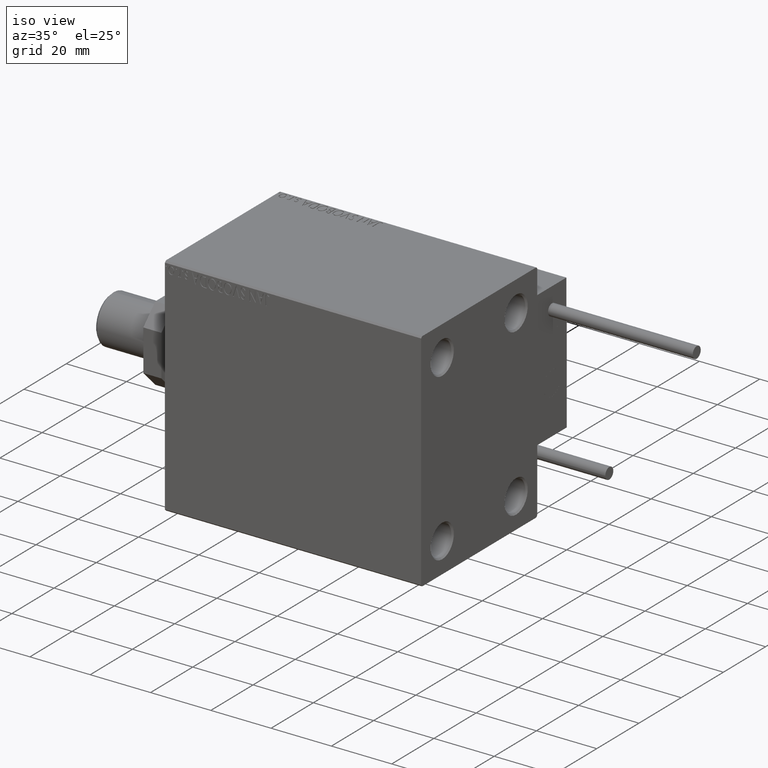
[diagram: clean part render]
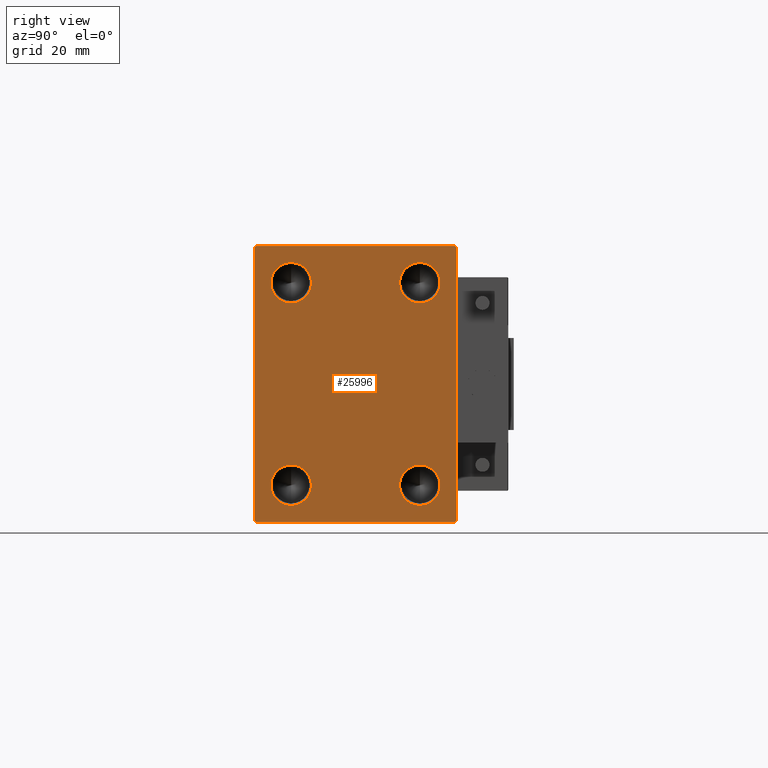
[diagram: tour spotlight — one face highlighted and labeled with its STEP entity id]
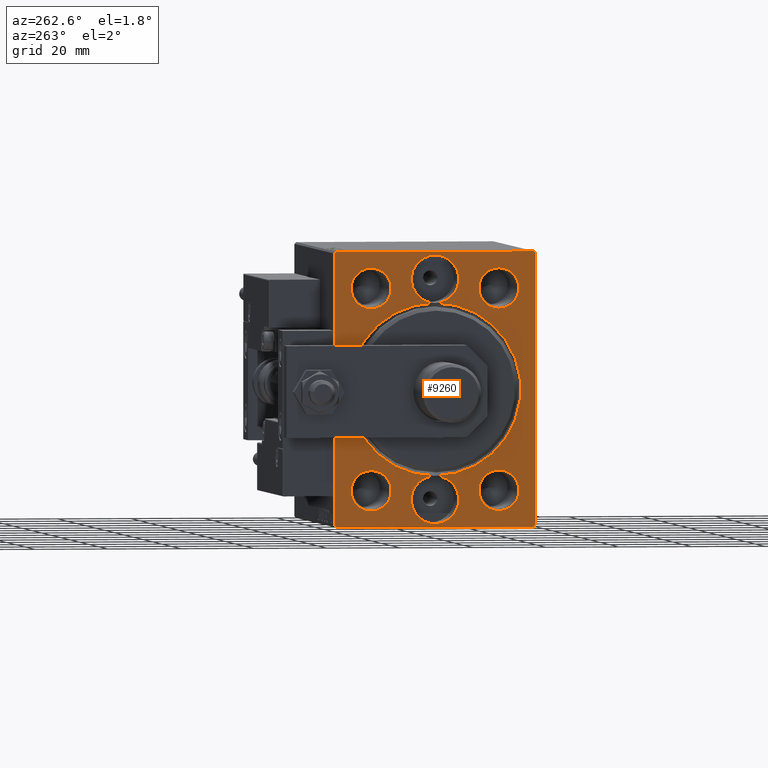
[diagram: tour spotlight — one face highlighted and labeled with its STEP entity id]
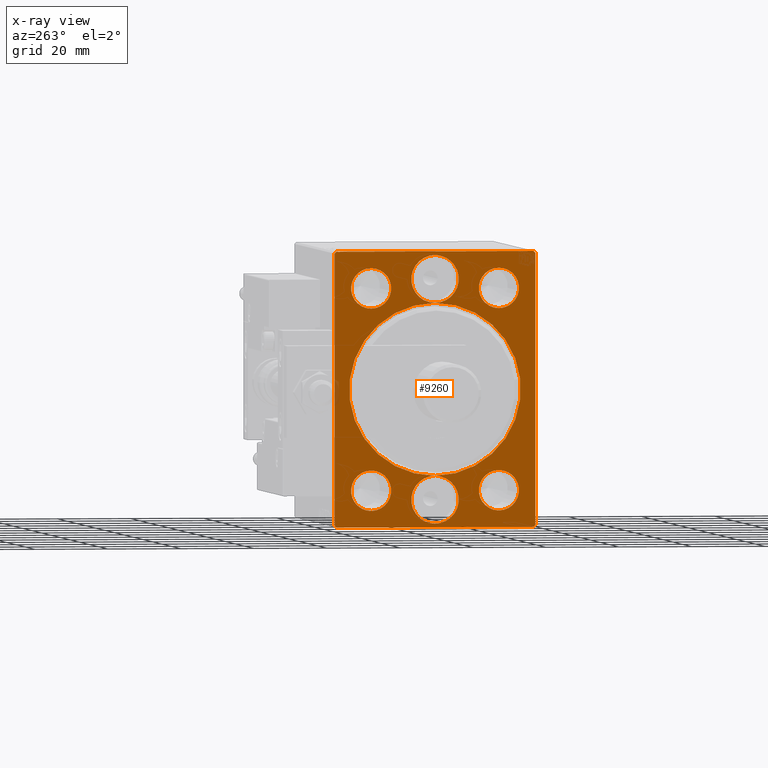
[diagram: x-ray of the same camera — body ghosted, this tour face saturated]
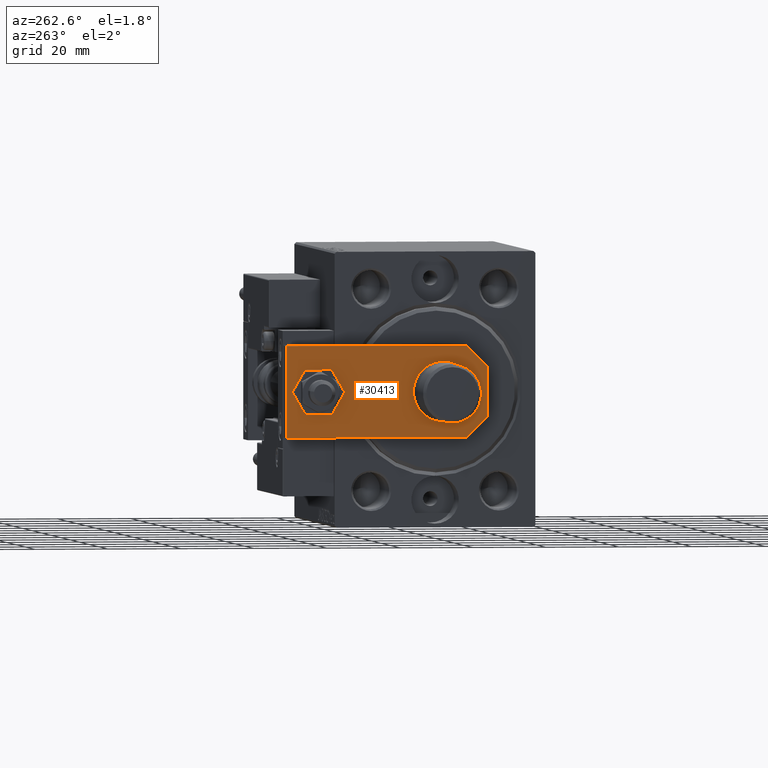
[diagram: tour spotlight — one face highlighted and labeled with its STEP entity id]
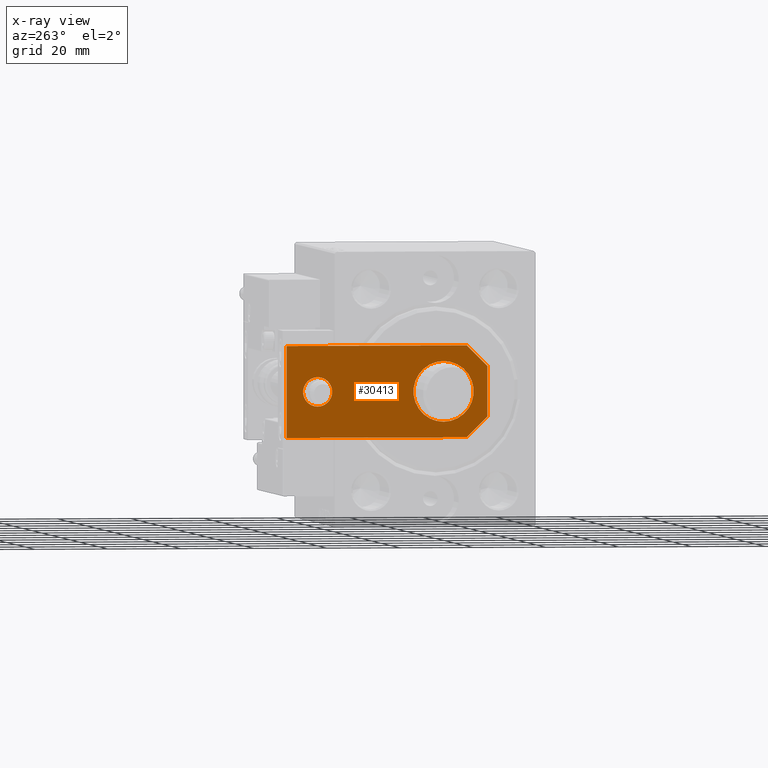
[diagram: x-ray of the same camera — body ghosted, this tour face saturated]
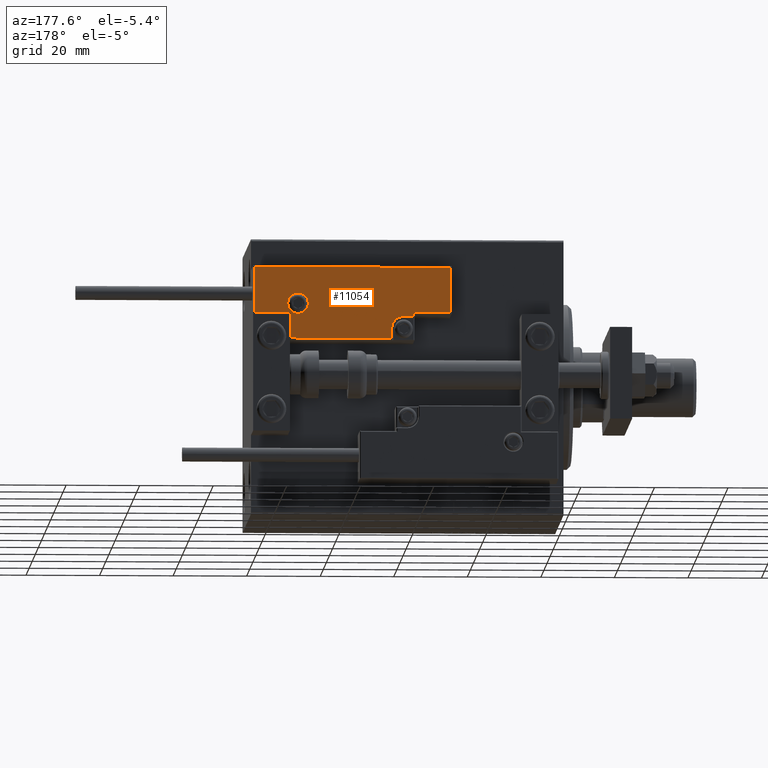
[diagram: tour spotlight — one face highlighted and labeled with its STEP entity id]
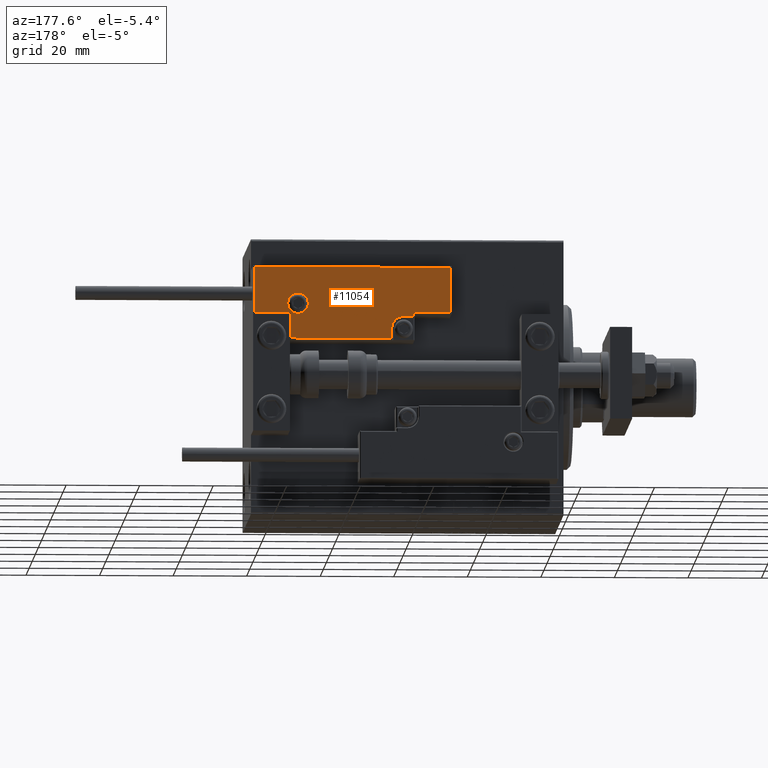
[diagram: tour spotlight — one face highlighted and labeled with its STEP entity id]
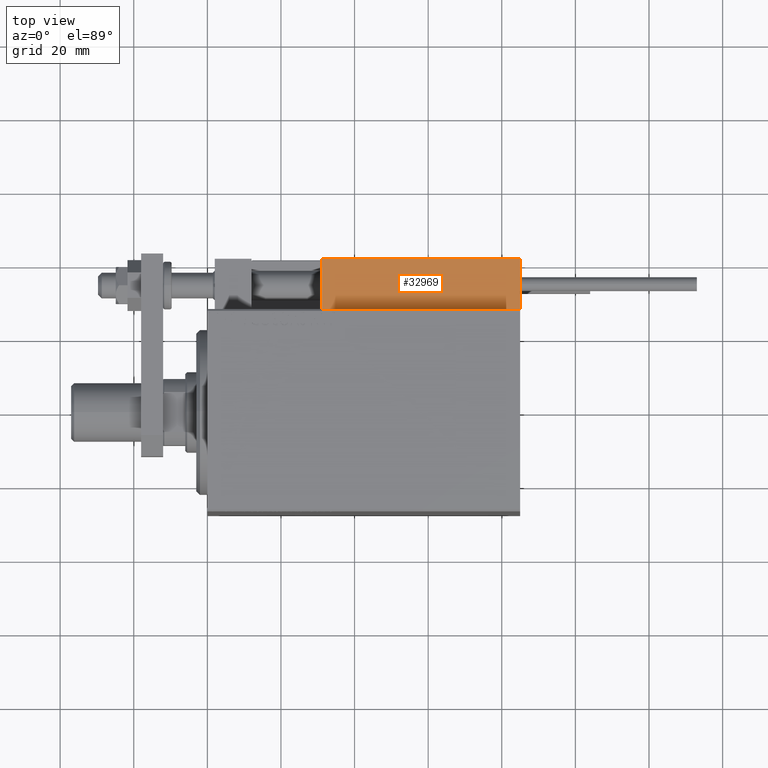
[diagram: tour spotlight — one face highlighted and labeled with its STEP entity id]
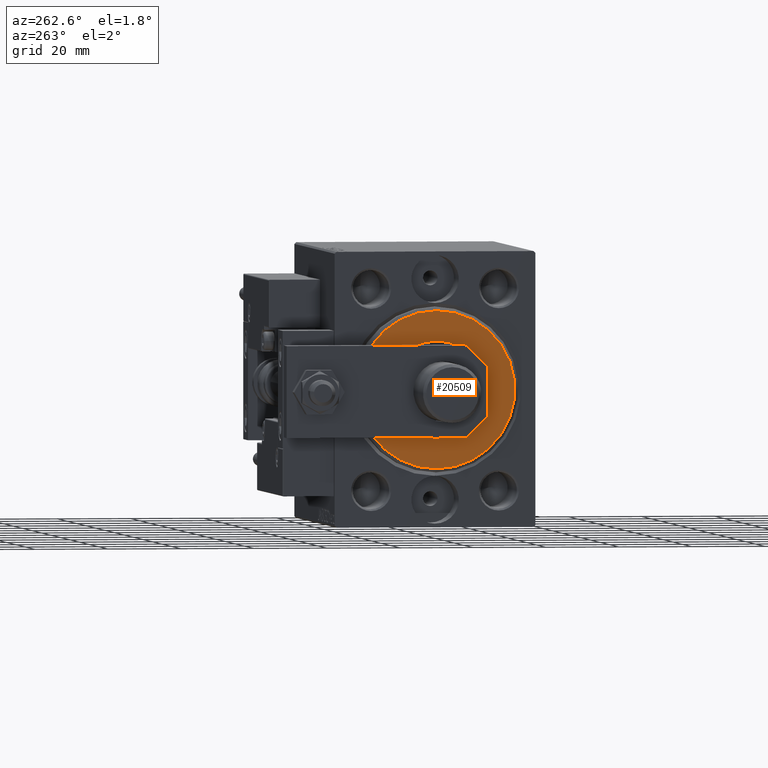
[diagram: tour spotlight — one face highlighted and labeled with its STEP entity id]
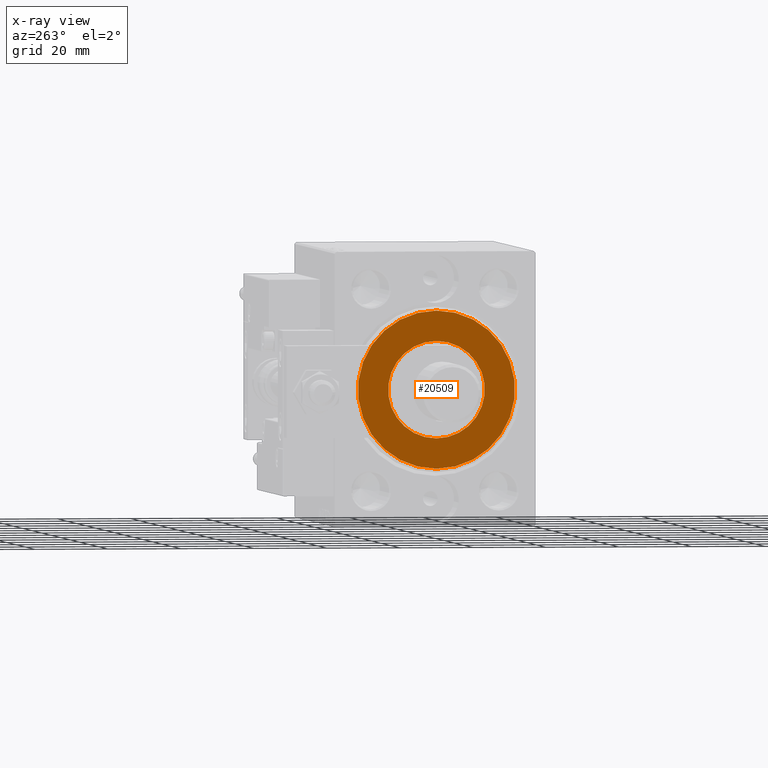
[diagram: x-ray of the same camera — body ghosted, this tour face saturated]
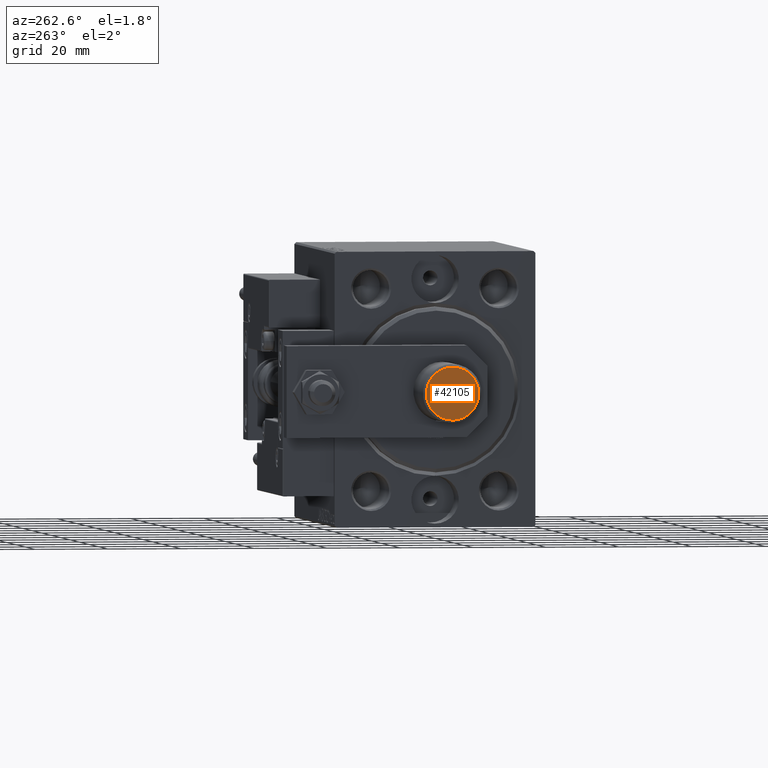
[diagram: tour spotlight — one face highlighted and labeled with its STEP entity id]
A machine part: a face-by-face anatomy tour. The part has 1327 B-rep faces; the first image is the clean iso view, then the 8 largest visible faces are spotlighted one at a time (largest first), each with its STEP entity span.

Face 1 — right view, entity #25996. In plain terms, the highlighted planar face has unit normal (1, 0, 0).
Definition (entity closure, byte-faithful):
#448 = LINE ( 'NONE', #43680, #9143 ) ;
#799 = VERTEX_POINT ( 'NONE', #37672 ) ;
#919 = CARTESIAN_POINT ( 'NONE',  ( 85.00000000000000000, -17.50000000000000000, 33.00000000000001421 ) ) ;
#965 = DIRECTION ( 'NONE',  ( 0.000000000000000000, 0.000000000000000000, -1.000000000000000000 ) ) ;
#1697 = VECTOR ( 'NONE', #21809, 1000.000000000000114 ) ;
#1713 = EDGE_CURVE ( 'NONE', #799, #36261, #25731, .T. ) ;
#1933 = EDGE_CURVE ( 'NONE', #50581, #44253, #40644, .T. ) ;
#1950 = DIRECTION ( 'NONE',  ( 1.000000000000000000, -0.000000000000000000, -0.000000000000000000 ) ) ;
#2307 = VECTOR ( 'NONE', #17545, 1000.000000000000000 ) ;
#2764 = VERTEX_POINT ( 'NONE', #31010 ) ;
#3123 = FACE_BOUND ( 'NONE', #34350, .T. ) ;
#3625 = AXIS2_PLACEMENT_3D ( 'NONE', #7234, #38998, #10906 ) ;
#4347 = CARTESIAN_POINT ( 'NONE',  ( 85.00000000000000000, -17.50000000000000000, -27.49999999999999645 ) ) ;
#4622 = DIRECTION ( 'NONE',  ( 0.000000000000000000, 0.000000000000000000, -1.000000000000000000 ) ) ;
#5104 = EDGE_CURVE ( 'NONE', #2764, #30150, #8015, .T. ) ;
#5531 = ORIENTED_EDGE ( 'NONE', *, *, #36299, .T. ) ;
#5910 = CARTESIAN_POINT ( 'NONE',  ( 85.00000000000000000, 32.25000000000000000, -32.25000000000000000 ) ) ;
#6655 = ORIENTED_EDGE ( 'NONE', *, *, #43778, .T. ) ;
#6662 = VECTOR ( 'NONE', #43947, 1000.000000000000000 ) ;
#6752 = CARTESIAN_POINT ( 'NONE',  ( 85.00000000000000000, -26.99999999999999645, 37.49999999999998579 ) ) ;
#7234 = CARTESIAN_POINT ( 'NONE',  ( 85.00000000000000000, -17.50000000000000000, 27.50000000000000000 ) ) ;
#7364 = AXIS2_PLACEMENT_3D ( 'NONE', #43406, #50987, #47075 ) ;
#8015 = LINE ( 'NONE', #16647, #6662 ) ;
#8893 = ORIENTED_EDGE ( 'NONE', *, *, #41638, .F. ) ;
#8979 = CARTESIAN_POINT ( 'NONE',  ( 85.00000000000000000, -17.50000000000000000, 21.99999999999999289 ) ) ;
#9143 = VECTOR ( 'NONE', #4622, 1000.000000000000000 ) ;
#9411 = LINE ( 'NONE', #13595, #19398 ) ;
#10049 = CIRCLE ( 'NONE', #15853, 5.500000000000005329 ) ;
#10133 = EDGE_CURVE ( 'NONE', #20268, #25581, #12854, .T. ) ;
#10442 = DIRECTION ( 'NONE',  ( 0.000000000000000000, 0.000000000000000000, -1.000000000000000000 ) ) ;
#10906 = DIRECTION ( 'NONE',  ( 0.000000000000000000, 0.000000000000000000, -1.000000000000000000 ) ) ;
#10947 = DIRECTION ( 'NONE',  ( 1.000000000000000000, 0.000000000000000000, 0.000000000000000000 ) ) ;
#11289 = ORIENTED_EDGE ( 'NONE', *, *, #27876, .F. ) ;
#12854 = LINE ( 'NONE', #48759, #2307 ) ;
#13002 = EDGE_CURVE ( 'NONE', #25581, #2764, #17604, .T. ) ;
#13005 = CARTESIAN_POINT ( 'NONE',  ( 85.00000000000000000, -26.99999999999999645, -37.50000000000000000 ) ) ;
#13169 = CARTESIAN_POINT ( 'NONE',  ( 85.00000000000000000, -17.50000000000000000, -27.49999999999999645 ) ) ;
#13595 = CARTESIAN_POINT ( 'NONE',  ( 85.00000000000000000, -32.24999999999999289, -32.24999999999999289 ) ) ;
#13956 = CARTESIAN_POINT ( 'NONE',  ( 85.00000000000000000, 32.24999999999999289, 32.24999999999999289 ) ) ;
#14876 = FACE_BOUND ( 'NONE', #42668, .T. ) ;
#15046 = EDGE_LOOP ( 'NONE', ( #38556, #32754 ) ) ;
#15853 = AXIS2_PLACEMENT_3D ( 'NONE', #13169, #1950, #33203 ) ;
#16647 = CARTESIAN_POINT ( 'NONE',  ( 85.00000000000000000, 27.49999999999999645, 37.50000000000000000 ) ) ;
#16769 = EDGE_LOOP ( 'NONE', ( #40604, #6655, #5531, #50846, #47698, #26996, #46142, #26082 ) ) ;
#16773 = EDGE_CURVE ( 'NONE', #44253, #50581, #10049, .T. ) ;
#17545 = DIRECTION ( 'NONE',  ( 0.000000000000000000, -9.251858538542971581E-17, 1.000000000000000000 ) ) ;
#17604 = LINE ( 'NONE', #13956, #22380 ) ;
#18511 = CARTESIAN_POINT ( 'NONE',  ( 85.00000000000000000, 17.50000000000000000, -27.49999999999999645 ) ) ;
#19300 = DIRECTION ( 'NONE',  ( 0.000000000000000000, -0.7071067811865474617, -0.7071067811865474617 ) ) ;
#19398 = VECTOR ( 'NONE', #26071, 1000.000000000000114 ) ;
#19423 = VERTEX_POINT ( 'NONE', #13005 ) ;
#20268 = VERTEX_POINT ( 'NONE', #37691 ) ;
#20675 = CARTESIAN_POINT ( 'NONE',  ( 85.00000000000000000, 17.50000000000000000, 33.00000000000001421 ) ) ;
#20757 = DIRECTION ( 'NONE',  ( 0.000000000000000000, 0.000000000000000000, -1.000000000000000000 ) ) ;
#20956 = CIRCLE ( 'NONE', #29273, 5.500000000000007994 ) ;
#21809 = DIRECTION ( 'NONE',  ( -0.000000000000000000, 0.7071067811865474617, 0.7071067811865474617 ) ) ;
#21823 = EDGE_CURVE ( 'NONE', #19423, #32105, #42241, .T. ) ;
#22380 = VECTOR ( 'NONE', #34235, 1000.000000000000114 ) ;
#22906 = DIRECTION ( 'NONE',  ( 0.000000000000000000, 0.000000000000000000, -1.000000000000000000 ) ) ;
#23185 = AXIS2_PLACEMENT_3D ( 'NONE', #4347, #44443, #20757 ) ;
#23241 = EDGE_CURVE ( 'NONE', #33333, #49416, #20956, .T. ) ;
#23249 = VERTEX_POINT ( 'NONE', #30981 ) ;
#23655 = AXIS2_PLACEMENT_3D ( 'NONE', #29813, #25656, #37113 ) ;
#23946 = CARTESIAN_POINT ( 'NONE',  ( 85.00000000000000000, -32.24999999999999289, 32.24999999999999289 ) ) ;
#25581 = VERTEX_POINT ( 'NONE', #39407 ) ;
#25656 = DIRECTION ( 'NONE',  ( 1.000000000000000000, -0.000000000000000000, -0.000000000000000000 ) ) ;
#25715 = LINE ( 'NONE', #5910, #1697 ) ;
#25731 = CIRCLE ( 'NONE', #7364, 5.500000000000005329 ) ;
#25996 = ADVANCED_FACE ( 'NONE', ( #14876, #38786, #34133, #3123, #38541 ), #30723, .T. ) ;
#26071 = DIRECTION ( 'NONE',  ( -0.000000000000000000, 0.7071067811865474617, -0.7071067811865474617 ) ) ;
#26082 = ORIENTED_EDGE ( 'NONE', *, *, #13002, .T. ) ;
#26534 = EDGE_LOOP ( 'NONE', ( #26741, #11289 ) ) ;
#26741 = ORIENTED_EDGE ( 'NONE', *, *, #23241, .F. ) ;
#26996 = ORIENTED_EDGE ( 'NONE', *, *, #37290, .T. ) ;
#27876 = EDGE_CURVE ( 'NONE', #49416, #33333, #40220, .T. ) ;
#28208 = VERTEX_POINT ( 'NONE', #20675 ) ;
#28450 = VECTOR ( 'NONE', #19300, 1000.000000000000114 ) ;
#28492 = CIRCLE ( 'NONE', #41824, 5.500000000000005329 ) ;
#28981 = CARTESIAN_POINT ( 'NONE',  ( 85.00000000000000000, -17.50000000000000000, -33.00000000000000000 ) ) ;
#29150 = EDGE_CURVE ( 'NONE', #28208, #23249, #44433, .T. ) ;
#29207 = VECTOR ( 'NONE', #41740, 1000.000000000000000 ) ;
#29273 = AXIS2_PLACEMENT_3D ( 'NONE', #34634, #30219, #42947 ) ;
#29813 = CARTESIAN_POINT ( 'NONE',  ( 85.00000000000000000, 17.50000000000000000, 27.50000000000000000 ) ) ;
#30150 = VERTEX_POINT ( 'NONE', #6752 ) ;
#30178 = AXIS2_PLACEMENT_3D ( 'NONE', #38030, #10947, #10442 ) ;
#30219 = DIRECTION ( 'NONE',  ( 1.000000000000000000, -0.000000000000000000, -0.000000000000000000 ) ) ;
#30715 = DIRECTION ( 'NONE',  ( 1.000000000000000000, -0.000000000000000000, -0.000000000000000000 ) ) ;
#30723 = PLANE ( 'NONE',  #30178 ) ;
#30776 = CARTESIAN_POINT ( 'NONE',  ( 85.00000000000000000, -27.49999999999999645, -37.50000000000000000 ) ) ;
#30981 = CARTESIAN_POINT ( 'NONE',  ( 85.00000000000000000, 17.50000000000000000, 21.99999999999999289 ) ) ;
#31010 = CARTESIAN_POINT ( 'NONE',  ( 85.00000000000000000, 26.99999999999999645, 37.50000000000000000 ) ) ;
#31988 = CARTESIAN_POINT ( 'NONE',  ( 85.00000000000000000, 17.50000000000000000, 27.50000000000000000 ) ) ;
#32105 = VERTEX_POINT ( 'NONE', #34116 ) ;
#32754 = ORIENTED_EDGE ( 'NONE', *, *, #1933, .F. ) ;
#33203 = DIRECTION ( 'NONE',  ( 0.000000000000000000, 0.000000000000000000, -1.000000000000000000 ) ) ;
#33333 = VERTEX_POINT ( 'NONE', #919 ) ;
#33400 = CARTESIAN_POINT ( 'NONE',  ( 85.00000000000000000, -27.49999999999999645, 36.99999999999998579 ) ) ;
#34116 = CARTESIAN_POINT ( 'NONE',  ( 85.00000000000000000, 27.00000000000000355, -37.50000000000000000 ) ) ;
#34133 = FACE_BOUND ( 'NONE', #15046, .T. ) ;
#34235 = DIRECTION ( 'NONE',  ( -0.000000000000000000, -0.7071067811865474617, 0.7071067811865474617 ) ) ;
#34306 = CARTESIAN_POINT ( 'NONE',  ( 85.00000000000000000, -27.49999999999999645, -37.00000000000000000 ) ) ;
#34350 = EDGE_LOOP ( 'NONE', ( #45856, #8893 ) ) ;
#34634 = CARTESIAN_POINT ( 'NONE',  ( 85.00000000000000000, -17.50000000000000000, 27.50000000000000000 ) ) ;
#36124 = AXIS2_PLACEMENT_3D ( 'NONE', #31988, #40034, #965 ) ;
#36261 = VERTEX_POINT ( 'NONE', #48622 ) ;
#36299 = EDGE_CURVE ( 'NONE', #40419, #37995, #448, .T. ) ;
#37113 = DIRECTION ( 'NONE',  ( 0.000000000000000000, 0.000000000000000000, -1.000000000000000000 ) ) ;
#37290 = EDGE_CURVE ( 'NONE', #32105, #20268, #25715, .T. ) ;
#37672 = CARTESIAN_POINT ( 'NONE',  ( 85.00000000000000000, 17.50000000000000000, -21.99999999999998934 ) ) ;
#37691 = CARTESIAN_POINT ( 'NONE',  ( 85.00000000000000000, 27.50000000000000355, -37.00000000000000000 ) ) ;
#37995 = VERTEX_POINT ( 'NONE', #34306 ) ;
#38030 = CARTESIAN_POINT ( 'NONE',  ( 85.00000000000000000, 0.000000000000000000, 0.000000000000000000 ) ) ;
#38541 = FACE_OUTER_BOUND ( 'NONE', #16769, .T. ) ;
#38556 = ORIENTED_EDGE ( 'NONE', *, *, #16773, .F. ) ;
#38786 = FACE_BOUND ( 'NONE', #26534, .T. ) ;
#38998 = DIRECTION ( 'NONE',  ( 1.000000000000000000, -0.000000000000000000, -0.000000000000000000 ) ) ;
#39407 = CARTESIAN_POINT ( 'NONE',  ( 85.00000000000000000, 27.49999999999999645, 37.00000000000000000 ) ) ;
#39865 = ORIENTED_EDGE ( 'NONE', *, *, #49509, .F. ) ;
#40034 = DIRECTION ( 'NONE',  ( 1.000000000000000000, -0.000000000000000000, -0.000000000000000000 ) ) ;
#40220 = CIRCLE ( 'NONE', #3625, 5.500000000000007994 ) ;
#40265 = CIRCLE ( 'NONE', #23655, 5.500000000000007994 ) ;
#40419 = VERTEX_POINT ( 'NONE', #33400 ) ;
#40604 = ORIENTED_EDGE ( 'NONE', *, *, #5104, .T. ) ;
#40644 = CIRCLE ( 'NONE', #23185, 5.500000000000005329 ) ;
#41638 = EDGE_CURVE ( 'NONE', #36261, #799, #28492, .T. ) ;
#41740 = DIRECTION ( 'NONE',  ( 0.000000000000000000, 1.000000000000000000, 0.000000000000000000 ) ) ;
#41824 = AXIS2_PLACEMENT_3D ( 'NONE', #18511, #30715, #22906 ) ;
#42241 = LINE ( 'NONE', #30776, #29207 ) ;
#42668 = EDGE_LOOP ( 'NONE', ( #47384, #39865 ) ) ;
#42947 = DIRECTION ( 'NONE',  ( 0.000000000000000000, 0.000000000000000000, -1.000000000000000000 ) ) ;
#43406 = CARTESIAN_POINT ( 'NONE',  ( 85.00000000000000000, 17.50000000000000000, -27.49999999999999645 ) ) ;
#43680 = CARTESIAN_POINT ( 'NONE',  ( 85.00000000000000000, -27.49999999999999645, 37.49999999999998579 ) ) ;
#43778 = EDGE_CURVE ( 'NONE', #30150, #40419, #50798, .T. ) ;
#43947 = DIRECTION ( 'NONE',  ( 0.000000000000000000, -1.000000000000000000, -2.523234146875355998E-16 ) ) ;
#44184 = CARTESIAN_POINT ( 'NONE',  ( 85.00000000000000000, -17.50000000000000000, -21.99999999999998934 ) ) ;
#44253 = VERTEX_POINT ( 'NONE', #44184 ) ;
#44433 = CIRCLE ( 'NONE', #36124, 5.500000000000007994 ) ;
#44443 = DIRECTION ( 'NONE',  ( 1.000000000000000000, -0.000000000000000000, -0.000000000000000000 ) ) ;
#45856 = ORIENTED_EDGE ( 'NONE', *, *, #1713, .F. ) ;
#46142 = ORIENTED_EDGE ( 'NONE', *, *, #10133, .T. ) ;
#46812 = EDGE_CURVE ( 'NONE', #37995, #19423, #9411, .T. ) ;
#47075 = DIRECTION ( 'NONE',  ( 0.000000000000000000, 0.000000000000000000, -1.000000000000000000 ) ) ;
#47384 = ORIENTED_EDGE ( 'NONE', *, *, #29150, .F. ) ;
#47698 = ORIENTED_EDGE ( 'NONE', *, *, #21823, .T. ) ;
#48622 = CARTESIAN_POINT ( 'NONE',  ( 85.00000000000000000, 17.50000000000000000, -33.00000000000000000 ) ) ;
#48759 = CARTESIAN_POINT ( 'NONE',  ( 85.00000000000000000, 27.50000000000000355, -37.50000000000000000 ) ) ;
#49416 = VERTEX_POINT ( 'NONE', #8979 ) ;
#49509 = EDGE_CURVE ( 'NONE', #23249, #28208, #40265, .T. ) ;
#50581 = VERTEX_POINT ( 'NONE', #28981 ) ;
#50798 = LINE ( 'NONE', #23946, #28450 ) ;
#50846 = ORIENTED_EDGE ( 'NONE', *, *, #46812, .T. ) ;
#50987 = DIRECTION ( 'NONE',  ( 1.000000000000000000, -0.000000000000000000, -0.000000000000000000 ) ) ;

Face 2 — auxiliary view, entity #9260. An x-ray twin of the same camera follows (body ghosted, this face saturated) — the face is partly hidden behind the body. In plain terms, the highlighted planar face has unit normal (1, 0, 0).
Definition (entity closure, byte-faithful):
#129 = CARTESIAN_POINT ( 'NONE',  ( 0.000000000000000000, 17.50000000000000000, -21.99999999999999289 ) ) ;
#373 = ORIENTED_EDGE ( 'NONE', *, *, #50789, .F. ) ;
#440 = VERTEX_POINT ( 'NONE', #33828 ) ;
#503 = CARTESIAN_POINT ( 'NONE',  ( 0.000000000000000000, -26.99999999999999645, -37.50000000000000000 ) ) ;
#945 = CARTESIAN_POINT ( 'NONE',  ( 0.000000000000000000, 17.50000000000000000, 33.00000000000000711 ) ) ;
#950 = DIRECTION ( 'NONE',  ( 0.000000000000000000, 0.000000000000000000, 1.000000000000000000 ) ) ;
#1191 = AXIS2_PLACEMENT_3D ( 'NONE', #33796, #49677, #2017 ) ;
#1260 = CARTESIAN_POINT ( 'NONE',  ( 0.000000000000000000, 17.50000000000000000, -27.49999999999999645 ) ) ;
#1262 = VERTEX_POINT ( 'NONE', #8054 ) ;
#1365 = VERTEX_POINT ( 'NONE', #44766 ) ;
#2017 = DIRECTION ( 'NONE',  ( 0.000000000000000000, 0.000000000000000000, 1.000000000000000000 ) ) ;
#2136 = ORIENTED_EDGE ( 'NONE', *, *, #29304, .F. ) ;
#2197 = DIRECTION ( 'NONE',  ( 0.000000000000000000, 0.000000000000000000, -1.000000000000000000 ) ) ;
#2746 = CARTESIAN_POINT ( 'NONE',  ( 0.000000000000000000, 0.000000000000000000, 23.50000000000000355 ) ) ;
#2810 = AXIS2_PLACEMENT_3D ( 'NONE', #28863, #9334, #24183 ) ;
#2845 = ORIENTED_EDGE ( 'NONE', *, *, #41323, .T. ) ;
#2867 = EDGE_LOOP ( 'NONE', ( #19791, #40676 ) ) ;
#3229 = EDGE_CURVE ( 'NONE', #24581, #38884, #51502, .T. ) ;
#3272 = VERTEX_POINT ( 'NONE', #945 ) ;
#3660 = VECTOR ( 'NONE', #50476, 1000.000000000000000 ) ;
#4113 = FACE_BOUND ( 'NONE', #7595, .T. ) ;
#4194 = CARTESIAN_POINT ( 'NONE',  ( 0.000000000000000000, 17.50000000000000000, 27.50000000000000000 ) ) ;
#4313 = DIRECTION ( 'NONE',  ( 0.000000000000000000, -0.7071067811865474617, -0.7071067811865474617 ) ) ;
#4564 = EDGE_CURVE ( 'NONE', #38884, #24581, #49882, .T. ) ;
#5209 = DIRECTION ( 'NONE',  ( 0.000000000000000000, 0.000000000000000000, -1.000000000000000000 ) ) ;
#5294 = EDGE_CURVE ( 'NONE', #11531, #43054, #15931, .T. ) ;
#5316 = CIRCLE ( 'NONE', #9504, 6.499999999999999112 ) ;
#5378 = DIRECTION ( 'NONE',  ( -1.000000000000000000, 0.000000000000000000, 0.000000000000000000 ) ) ;
#5690 = DIRECTION ( 'NONE',  ( 1.000000000000000000, 0.000000000000000000, 0.000000000000000000 ) ) ;
#6043 = VECTOR ( 'NONE', #42938, 1000.000000000000000 ) ;
#6243 = ORIENTED_EDGE ( 'NONE', *, *, #41798, .F. ) ;
#6492 = CARTESIAN_POINT ( 'NONE',  ( 0.000000000000000000, -27.49999999999999645, 36.99999999999998579 ) ) ;
#6590 = AXIS2_PLACEMENT_3D ( 'NONE', #48358, #8780, #28569 ) ;
#6968 = AXIS2_PLACEMENT_3D ( 'NONE', #1260, #5690, #37221 ) ;
#7116 = CARTESIAN_POINT ( 'NONE',  ( 0.000000000000000000, 0.000000000000000000, 0.000000000000000000 ) ) ;
#7249 = CARTESIAN_POINT ( 'NONE',  ( 0.000000000000000000, 26.99999999999999645, 37.50000000000000000 ) ) ;
#7595 = EDGE_LOOP ( 'NONE', ( #24958, #49063, #373, #44985, #17071, #2136 ) ) ;
#7769 = CARTESIAN_POINT ( 'NONE',  ( 0.000000000000000000, -27.49999999999999645, -37.50000000000000000 ) ) ;
#8014 = FACE_OUTER_BOUND ( 'NONE', #35681, .T. ) ;
#8054 = CARTESIAN_POINT ( 'NONE',  ( 0.000000000000000000, 27.00000000000000355, -37.50000000000000000 ) ) ;
#8780 = DIRECTION ( 'NONE',  ( 1.000000000000000000, 0.000000000000000000, 0.000000000000000000 ) ) ;
#8823 = ORIENTED_EDGE ( 'NONE', *, *, #31004, .T. ) ;
#8846 = VERTEX_POINT ( 'NONE', #24497 ) ;
#8911 = DIRECTION ( 'NONE',  ( 0.000000000000000000, 0.000000000000000000, -1.000000000000000000 ) ) ;
#9260 = ADVANCED_FACE ( 'NONE', ( #4113, #36162, #16384, #47610, #12725, #8014 ), #11948, .F. ) ;
#9334 = DIRECTION ( 'NONE',  ( 1.000000000000000000, 0.000000000000000000, 0.000000000000000000 ) ) ;
#9355 = CIRCLE ( 'NONE', #19361, 6.499999999999999112 ) ;
#9504 = AXIS2_PLACEMENT_3D ( 'NONE', #25902, #10280, #34222 ) ;
#10280 = DIRECTION ( 'NONE',  ( -1.000000000000000000, 0.000000000000000000, 0.000000000000000000 ) ) ;
#11181 = DIRECTION ( 'NONE',  ( -0.000000000000000000, 0.7071067811865474617, -0.7071067811865474617 ) ) ;
#11455 = ORIENTED_EDGE ( 'NONE', *, *, #31273, .F. ) ;
#11501 = CARTESIAN_POINT ( 'NONE',  ( 0.000000000000000000, -17.50000000000000000, 21.99999999999999645 ) ) ;
#11531 = VERTEX_POINT ( 'NONE', #503 ) ;
#11948 = PLANE ( 'NONE',  #18900 ) ;
#12143 = LINE ( 'NONE', #28010, #14933 ) ;
#12725 = FACE_BOUND ( 'NONE', #26875, .T. ) ;
#12915 = VERTEX_POINT ( 'NONE', #47033 ) ;
#13524 = ORIENTED_EDGE ( 'NONE', *, *, #44908, .T. ) ;
#13572 = DIRECTION ( 'NONE',  ( 1.000000000000000000, 0.000000000000000000, 0.000000000000000000 ) ) ;
#13662 = CIRCLE ( 'NONE', #2810, 5.500000000000007994 ) ;
#13752 = EDGE_CURVE ( 'NONE', #30891, #1262, #12143, .T. ) ;
#14188 = AXIS2_PLACEMENT_3D ( 'NONE', #25955, #34274, #49646 ) ;
#14554 = CIRCLE ( 'NONE', #24481, 5.500000000000005329 ) ;
#14933 = VECTOR ( 'NONE', #4313, 1000.000000000000114 ) ;
#15004 = CIRCLE ( 'NONE', #27407, 5.500000000000005329 ) ;
#15931 = LINE ( 'NONE', #27355, #16705 ) ;
#16366 = EDGE_CURVE ( 'NONE', #1365, #3272, #22492, .T. ) ;
#16384 = FACE_BOUND ( 'NONE', #44371, .T. ) ;
#16705 = VECTOR ( 'NONE', #35188, 1000.000000000000114 ) ;
#16759 = CARTESIAN_POINT ( 'NONE',  ( 0.000000000000000000, -17.50000000000000000, 27.50000000000000000 ) ) ;
#16882 = AXIS2_PLACEMENT_3D ( 'NONE', #16759, #32612, #8911 ) ;
#17071 = ORIENTED_EDGE ( 'NONE', *, *, #45165, .F. ) ;
#17476 = CARTESIAN_POINT ( 'NONE',  ( 0.000000000000000000, -17.50000000000000000, -27.49999999999999645 ) ) ;
#17592 = LINE ( 'NONE', #29280, #41179 ) ;
#18385 = CARTESIAN_POINT ( 'NONE',  ( 0.000000000000000000, 0.000000000000000000, 36.50000000000000000 ) ) ;
#18749 = LINE ( 'NONE', #7249, #19152 ) ;
#18900 = AXIS2_PLACEMENT_3D ( 'NONE', #48380, #51521, #40305 ) ;
#19152 = VECTOR ( 'NONE', #11181, 1000.000000000000114 ) ;
#19248 = CARTESIAN_POINT ( 'NONE',  ( 0.000000000000000000, 17.50000000000000000, -27.49999999999999645 ) ) ;
#19361 = AXIS2_PLACEMENT_3D ( 'NONE', #28318, #5378, #950 ) ;
#19456 = VERTEX_POINT ( 'NONE', #129 ) ;
#19577 = ORIENTED_EDGE ( 'NONE', *, *, #36121, .T. ) ;
#19581 = CARTESIAN_POINT ( 'NONE',  ( 0.000000000000000000, 17.50000000000000000, -33.00000000000000000 ) ) ;
#19791 = ORIENTED_EDGE ( 'NONE', *, *, #49760, .T. ) ;
#21751 = AXIS2_PLACEMENT_3D ( 'NONE', #37006, #25800, #5209 ) ;
#22401 = VERTEX_POINT ( 'NONE', #18385 ) ;
#22492 = CIRCLE ( 'NONE', #14188, 5.500000000000007994 ) ;
#22668 = CIRCLE ( 'NONE', #16882, 5.500000000000007994 ) ;
#24183 = DIRECTION ( 'NONE',  ( 0.000000000000000000, 0.000000000000000000, -1.000000000000000000 ) ) ;
#24245 = CARTESIAN_POINT ( 'NONE',  ( 0.000000000000000000, 0.000000000000000000, -23.50000000000000355 ) ) ;
#24481 = AXIS2_PLACEMENT_3D ( 'NONE', #17476, #13572, #29433 ) ;
#24497 = CARTESIAN_POINT ( 'NONE',  ( 0.000000000000000000, -26.99999999999999645, 37.49999999999998579 ) ) ;
#24524 = AXIS2_PLACEMENT_3D ( 'NONE', #25347, #41222, #45388 ) ;
#24581 = VERTEX_POINT ( 'NONE', #2746 ) ;
#24646 = VECTOR ( 'NONE', #45974, 1000.000000000000000 ) ;
#24814 = DIRECTION ( 'NONE',  ( -0.000000000000000000, 0.7071067811865474617, 0.7071067811865474617 ) ) ;
#24958 = ORIENTED_EDGE ( 'NONE', *, *, #3229, .T. ) ;
#25298 = ORIENTED_EDGE ( 'NONE', *, *, #27867, .F. ) ;
#25347 = CARTESIAN_POINT ( 'NONE',  ( 0.000000000000000000, 0.000000000000000000, -30.00000000000000000 ) ) ;
#25800 = DIRECTION ( 'NONE',  ( 1.000000000000000000, 0.000000000000000000, 0.000000000000000000 ) ) ;
#25801 = AXIS2_PLACEMENT_3D ( 'NONE', #7116, #46710, #2197 ) ;
#25902 = CARTESIAN_POINT ( 'NONE',  ( 0.000000000000000000, 0.000000000000000000, -30.00000000000000000 ) ) ;
#25955 = CARTESIAN_POINT ( 'NONE',  ( 0.000000000000000000, 17.50000000000000000, 27.50000000000000000 ) ) ;
#26118 = CARTESIAN_POINT ( 'NONE',  ( 0.000000000000000000, 27.49999999999999645, 37.00000000000000000 ) ) ;
#26441 = CARTESIAN_POINT ( 'NONE',  ( 0.000000000000000000, 27.50000000000000355, -37.50000000000000000 ) ) ;
#26875 = EDGE_LOOP ( 'NONE', ( #19577, #42256 ) ) ;
#27355 = CARTESIAN_POINT ( 'NONE',  ( 0.000000000000000000, -26.99999999999999645, -37.50000000000000000 ) ) ;
#27407 = AXIS2_PLACEMENT_3D ( 'NONE', #19248, #38760, #35124 ) ;
#27784 = EDGE_CURVE ( 'NONE', #32664, #19456, #29431, .T. ) ;
#27867 = EDGE_CURVE ( 'NONE', #32201, #43054, #46060, .T. ) ;
#28010 = CARTESIAN_POINT ( 'NONE',  ( 0.000000000000000000, 27.50000000000000355, -37.00000000000000000 ) ) ;
#28318 = CARTESIAN_POINT ( 'NONE',  ( 0.000000000000000000, 0.000000000000000000, 30.00000000000000000 ) ) ;
#28459 = EDGE_CURVE ( 'NONE', #12915, #38884, #5316, .T. ) ;
#28569 = DIRECTION ( 'NONE',  ( 0.000000000000000000, 0.000000000000000000, -1.000000000000000000 ) ) ;
#28574 = CARTESIAN_POINT ( 'NONE',  ( 0.000000000000000000, -17.50000000000000000, -21.99999999999999289 ) ) ;
#28679 = CIRCLE ( 'NONE', #24524, 6.499999999999999112 ) ;
#28863 = CARTESIAN_POINT ( 'NONE',  ( 0.000000000000000000, -17.50000000000000000, 27.50000000000000000 ) ) ;
#29280 = CARTESIAN_POINT ( 'NONE',  ( 0.000000000000000000, 27.49999999999999645, 37.50000000000000000 ) ) ;
#29304 = EDGE_CURVE ( 'NONE', #24581, #22401, #29507, .T. ) ;
#29431 = CIRCLE ( 'NONE', #6968, 5.500000000000005329 ) ;
#29433 = DIRECTION ( 'NONE',  ( 0.000000000000000000, 0.000000000000000000, -1.000000000000000000 ) ) ;
#29507 = CIRCLE ( 'NONE', #1191, 6.499999999999999112 ) ;
#29590 = ORIENTED_EDGE ( 'NONE', *, *, #5294, .T. ) ;
#30891 = VERTEX_POINT ( 'NONE', #35912 ) ;
#31004 = EDGE_CURVE ( 'NONE', #48861, #31971, #13662, .T. ) ;
#31273 = EDGE_CURVE ( 'NONE', #440, #8846, #17592, .T. ) ;
#31971 = VERTEX_POINT ( 'NONE', #11501 ) ;
#32201 = VERTEX_POINT ( 'NONE', #6492 ) ;
#32575 = ORIENTED_EDGE ( 'NONE', *, *, #13752, .T. ) ;
#32612 = DIRECTION ( 'NONE',  ( 1.000000000000000000, 0.000000000000000000, 0.000000000000000000 ) ) ;
#32664 = VERTEX_POINT ( 'NONE', #19581 ) ;
#33578 = EDGE_CURVE ( 'NONE', #30891, #50851, #49883, .T. ) ;
#33796 = CARTESIAN_POINT ( 'NONE',  ( 0.000000000000000000, 0.000000000000000000, 30.00000000000000000 ) ) ;
#33828 = CARTESIAN_POINT ( 'NONE',  ( 0.000000000000000000, 26.99999999999999645, 37.50000000000000000 ) ) ;
#34222 = DIRECTION ( 'NONE',  ( 0.000000000000000000, 0.000000000000000000, 1.000000000000000000 ) ) ;
#34274 = DIRECTION ( 'NONE',  ( 1.000000000000000000, 0.000000000000000000, 0.000000000000000000 ) ) ;
#35124 = DIRECTION ( 'NONE',  ( 0.000000000000000000, 0.000000000000000000, -1.000000000000000000 ) ) ;
#35188 = DIRECTION ( 'NONE',  ( -0.000000000000000000, -0.7071067811865474617, 0.7071067811865474617 ) ) ;
#35394 = LINE ( 'NONE', #7769, #6043 ) ;
#35681 = EDGE_LOOP ( 'NONE', ( #25298, #2845, #11455, #43727, #43672, #32575, #6243, #29590 ) ) ;
#35912 = CARTESIAN_POINT ( 'NONE',  ( 0.000000000000000000, 27.50000000000000355, -37.00000000000000000 ) ) ;
#36087 = EDGE_CURVE ( 'NONE', #440, #50851, #18749, .T. ) ;
#36121 = EDGE_CURVE ( 'NONE', #19456, #32664, #15004, .T. ) ;
#36162 = FACE_BOUND ( 'NONE', #2867, .T. ) ;
#36579 = DIRECTION ( 'NONE',  ( 0.000000000000000000, -1.000000000000000000, -2.523234146875355998E-16 ) ) ;
#36743 = ORIENTED_EDGE ( 'NONE', *, *, #50980, .T. ) ;
#37006 = CARTESIAN_POINT ( 'NONE',  ( 0.000000000000000000, -17.50000000000000000, -27.49999999999999645 ) ) ;
#37221 = DIRECTION ( 'NONE',  ( 0.000000000000000000, 0.000000000000000000, -1.000000000000000000 ) ) ;
#37380 = EDGE_LOOP ( 'NONE', ( #36743, #39606 ) ) ;
#38760 = DIRECTION ( 'NONE',  ( 1.000000000000000000, 0.000000000000000000, 0.000000000000000000 ) ) ;
#38884 = VERTEX_POINT ( 'NONE', #24245 ) ;
#39078 = EDGE_CURVE ( 'NONE', #45667, #45273, #45008, .T. ) ;
#39267 = CARTESIAN_POINT ( 'NONE',  ( 0.000000000000000000, -17.50000000000000000, 33.00000000000000711 ) ) ;
#39606 = ORIENTED_EDGE ( 'NONE', *, *, #16366, .T. ) ;
#40078 = VECTOR ( 'NONE', #24814, 1000.000000000000114 ) ;
#40117 = DIRECTION ( 'NONE',  ( 1.000000000000000000, 0.000000000000000000, 0.000000000000000000 ) ) ;
#40305 = DIRECTION ( 'NONE',  ( 0.000000000000000000, 0.000000000000000000, -1.000000000000000000 ) ) ;
#40676 = ORIENTED_EDGE ( 'NONE', *, *, #39078, .T. ) ;
#41133 = CIRCLE ( 'NONE', #49469, 5.500000000000007994 ) ;
#41179 = VECTOR ( 'NONE', #36579, 1000.000000000000000 ) ;
#41222 = DIRECTION ( 'NONE',  ( -1.000000000000000000, 0.000000000000000000, 0.000000000000000000 ) ) ;
#41323 = EDGE_CURVE ( 'NONE', #32201, #8846, #49290, .T. ) ;
#41798 = EDGE_CURVE ( 'NONE', #11531, #1262, #35394, .T. ) ;
#42256 = ORIENTED_EDGE ( 'NONE', *, *, #27784, .T. ) ;
#42938 = DIRECTION ( 'NONE',  ( 0.000000000000000000, 1.000000000000000000, 0.000000000000000000 ) ) ;
#43054 = VERTEX_POINT ( 'NONE', #43151 ) ;
#43151 = CARTESIAN_POINT ( 'NONE',  ( 0.000000000000000000, -27.49999999999999645, -37.00000000000000000 ) ) ;
#43672 = ORIENTED_EDGE ( 'NONE', *, *, #33578, .F. ) ;
#43727 = ORIENTED_EDGE ( 'NONE', *, *, #36087, .T. ) ;
#44371 = EDGE_LOOP ( 'NONE', ( #8823, #13524 ) ) ;
#44766 = CARTESIAN_POINT ( 'NONE',  ( 0.000000000000000000, 17.50000000000000000, 21.99999999999999645 ) ) ;
#44908 = EDGE_CURVE ( 'NONE', #31971, #48861, #22668, .T. ) ;
#44985 = ORIENTED_EDGE ( 'NONE', *, *, #4564, .T. ) ;
#45008 = CIRCLE ( 'NONE', #21751, 5.500000000000005329 ) ;
#45165 = EDGE_CURVE ( 'NONE', #22401, #24581, #9355, .T. ) ;
#45273 = VERTEX_POINT ( 'NONE', #28574 ) ;
#45388 = DIRECTION ( 'NONE',  ( 0.000000000000000000, 0.000000000000000000, 1.000000000000000000 ) ) ;
#45638 = CARTESIAN_POINT ( 'NONE',  ( 0.000000000000000000, -27.49999999999999645, 36.99999999999998579 ) ) ;
#45667 = VERTEX_POINT ( 'NONE', #49854 ) ;
#45974 = DIRECTION ( 'NONE',  ( 0.000000000000000000, -9.251858538542971581E-17, 1.000000000000000000 ) ) ;
#46060 = LINE ( 'NONE', #49967, #3660 ) ;
#46710 = DIRECTION ( 'NONE',  ( 1.000000000000000000, 0.000000000000000000, 0.000000000000000000 ) ) ;
#47033 = CARTESIAN_POINT ( 'NONE',  ( 0.000000000000000000, 7.960204194457798435E-16, -36.50000000000000000 ) ) ;
#47610 = FACE_BOUND ( 'NONE', #37380, .T. ) ;
#48194 = DIRECTION ( 'NONE',  ( 0.000000000000000000, 0.000000000000000000, -1.000000000000000000 ) ) ;
#48358 = CARTESIAN_POINT ( 'NONE',  ( 0.000000000000000000, 0.000000000000000000, 0.000000000000000000 ) ) ;
#48380 = CARTESIAN_POINT ( 'NONE',  ( 0.000000000000000000, 0.000000000000000000, 0.000000000000000000 ) ) ;
#48861 = VERTEX_POINT ( 'NONE', #39267 ) ;
#49063 = ORIENTED_EDGE ( 'NONE', *, *, #28459, .F. ) ;
#49290 = LINE ( 'NONE', #45638, #40078 ) ;
#49469 = AXIS2_PLACEMENT_3D ( 'NONE', #4194, #40117, #48194 ) ;
#49646 = DIRECTION ( 'NONE',  ( 0.000000000000000000, 0.000000000000000000, -1.000000000000000000 ) ) ;
#49677 = DIRECTION ( 'NONE',  ( -1.000000000000000000, 0.000000000000000000, 0.000000000000000000 ) ) ;
#49760 = EDGE_CURVE ( 'NONE', #45273, #45667, #14554, .T. ) ;
#49854 = CARTESIAN_POINT ( 'NONE',  ( 0.000000000000000000, -17.50000000000000000, -33.00000000000000000 ) ) ;
#49882 = CIRCLE ( 'NONE', #25801, 23.50000000000000355 ) ;
#49883 = LINE ( 'NONE', #26441, #24646 ) ;
#49967 = CARTESIAN_POINT ( 'NONE',  ( 0.000000000000000000, -27.49999999999999645, 37.49999999999998579 ) ) ;
#50476 = DIRECTION ( 'NONE',  ( 0.000000000000000000, 0.000000000000000000, -1.000000000000000000 ) ) ;
#50789 = EDGE_CURVE ( 'NONE', #38884, #12915, #28679, .T. ) ;
#50851 = VERTEX_POINT ( 'NONE', #26118 ) ;
#50980 = EDGE_CURVE ( 'NONE', #3272, #1365, #41133, .T. ) ;
#51502 = CIRCLE ( 'NONE', #6590, 23.50000000000000355 ) ;
#51521 = DIRECTION ( 'NONE',  ( 1.000000000000000000, 0.000000000000000000, 0.000000000000000000 ) ) ;

Face 3 — auxiliary view, entity #30413. An x-ray twin of the same camera follows (body ghosted, this face saturated) — the face is partly hidden behind the body. In plain terms, the highlighted planar face has unit normal (-1, -0, 0).
Definition (entity closure, byte-faithful):
#79 = VERTEX_POINT ( 'NONE', #32339 ) ;
#549 = ORIENTED_EDGE ( 'NONE', *, *, #30227, .T. ) ;
#1509 = LINE ( 'NONE', #37475, #45897 ) ;
#4181 = CARTESIAN_POINT ( 'NONE',  ( -8.250000000000000000, 11.99999999999999645, 6.000000000000000000 ) ) ;
#4591 = LINE ( 'NONE', #33432, #10265 ) ;
#4878 = CARTESIAN_POINT ( 'NONE',  ( 4.000000000000000888, 46.50000000000000000, 6.000000000000000000 ) ) ;
#5657 = CARTESIAN_POINT ( 'NONE',  ( 12.50000000000000355, 4.814824860968089633E-32, 6.000000000000000000 ) ) ;
#6020 = EDGE_CURVE ( 'NONE', #8713, #21057, #49124, .T. ) ;
#6169 = VERTEX_POINT ( 'NONE', #4181 ) ;
#7009 = DIRECTION ( 'NONE',  ( 0.7071067811865483499, 0.7071067811865465735, -0.000000000000000000 ) ) ;
#7054 = EDGE_CURVE ( 'NONE', #6169, #25593, #21013, .T. ) ;
#7060 = CARTESIAN_POINT ( 'NONE',  ( -4.000000000000000888, 46.50000000000000000, 6.000000000000000000 ) ) ;
#7131 = CARTESIAN_POINT ( 'NONE',  ( 8.250000000000000000, 11.99999999999999822, 6.000000000000000000 ) ) ;
#7445 = LINE ( 'NONE', #51457, #18712 ) ;
#7811 = ORIENTED_EDGE ( 'NONE', *, *, #26253, .T. ) ;
#8707 = AXIS2_PLACEMENT_3D ( 'NONE', #17689, #29118, #49437 ) ;
#8713 = VERTEX_POINT ( 'NONE', #7060 ) ;
#8923 = ORIENTED_EDGE ( 'NONE', *, *, #14220, .T. ) ;
#9362 = EDGE_CURVE ( 'NONE', #19110, #79, #45769, .T. ) ;
#9585 = DIRECTION ( 'NONE',  ( -6.308085367188389994E-17, 1.000000000000000000, 0.000000000000000000 ) ) ;
#10265 = VECTOR ( 'NONE', #32202, 1000.000000000000000 ) ;
#10600 = VECTOR ( 'NONE', #9585, 1000.000000000000000 ) ;
#10935 = LINE ( 'NONE', #26811, #30358 ) ;
#12395 = DIRECTION ( 'NONE',  ( 1.000000000000000000, 0.000000000000000000, 0.000000000000000000 ) ) ;
#12604 = DIRECTION ( 'NONE',  ( 1.000000000000000000, 0.000000000000000000, 0.000000000000000000 ) ) ;
#13778 = FACE_BOUND ( 'NONE', #19564, .T. ) ;
#14131 = CARTESIAN_POINT ( 'NONE',  ( -12.50000000000000355, 4.814824860968089633E-32, 6.000000000000000000 ) ) ;
#14220 = EDGE_CURVE ( 'NONE', #31367, #25663, #34155, .T. ) ;
#14224 = AXIS2_PLACEMENT_3D ( 'NONE', #27744, #48050, #12395 ) ;
#14308 = DIRECTION ( 'NONE',  ( -1.000000000000000000, 0.000000000000000000, 0.000000000000000000 ) ) ;
#14387 = DIRECTION ( 'NONE',  ( 1.000000000000000000, 0.000000000000000000, 0.000000000000000000 ) ) ;
#14635 = EDGE_LOOP ( 'NONE', ( #19663, #17725 ) ) ;
#17689 = CARTESIAN_POINT ( 'NONE',  ( -1.432611055310774642E-16, 46.50000000000000000, 6.000000000000000000 ) ) ;
#17725 = ORIENTED_EDGE ( 'NONE', *, *, #48254, .F. ) ;
#18349 = DIRECTION ( 'NONE',  ( 1.000000000000000000, 0.000000000000000000, 0.000000000000000000 ) ) ;
#18611 = DIRECTION ( 'NONE',  ( 0.000000000000000000, 0.000000000000000000, 1.000000000000000000 ) ) ;
#18712 = VECTOR ( 'NONE', #39717, 1000.000000000000000 ) ;
#19110 = VERTEX_POINT ( 'NONE', #44298 ) ;
#19564 = EDGE_LOOP ( 'NONE', ( #37856, #40422 ) ) ;
#19635 = DIRECTION ( 'NONE',  ( 0.000000000000000000, 0.000000000000000000, 1.000000000000000000 ) ) ;
#19663 = ORIENTED_EDGE ( 'NONE', *, *, #7054, .F. ) ;
#20164 = CARTESIAN_POINT ( 'NONE',  ( -12.50000000000000355, 5.660000000000005471, 6.000000000000000000 ) ) ;
#20974 = CARTESIAN_POINT ( 'NONE',  ( -6.840000000000012292, 4.814824860968089633E-32, 6.000000000000000000 ) ) ;
#21013 = CIRCLE ( 'NONE', #40973, 8.250000000000000000 ) ;
#21057 = VERTEX_POINT ( 'NONE', #4878 ) ;
#21177 = CIRCLE ( 'NONE', #8707, 4.000000000000000888 ) ;
#24178 = EDGE_CURVE ( 'NONE', #79, #40071, #1509, .T. ) ;
#24897 = VECTOR ( 'NONE', #14387, 1000.000000000000000 ) ;
#25120 = CARTESIAN_POINT ( 'NONE',  ( -12.49999999999999822, 55.00000000000000000, 6.000000000000000000 ) ) ;
#25593 = VERTEX_POINT ( 'NONE', #7131 ) ;
#25663 = VERTEX_POINT ( 'NONE', #49562 ) ;
#25785 = ORIENTED_EDGE ( 'NONE', *, *, #50212, .T. ) ;
#26253 = EDGE_CURVE ( 'NONE', #47587, #31367, #4591, .T. ) ;
#26811 = CARTESIAN_POINT ( 'NONE',  ( 3.419999999999990603, -3.419999999999999485, 6.000000000000000000 ) ) ;
#27744 = CARTESIAN_POINT ( 'NONE',  ( -1.432611055310774642E-16, 46.50000000000000000, 6.000000000000000000 ) ) ;
#29110 = DIRECTION ( 'NONE',  ( -0.000000000000000000, 0.000000000000000000, 1.000000000000000000 ) ) ;
#29118 = DIRECTION ( 'NONE',  ( 0.000000000000000000, 0.000000000000000000, 1.000000000000000000 ) ) ;
#29430 = CIRCLE ( 'NONE', #44384, 8.250000000000000000 ) ;
#30227 = EDGE_CURVE ( 'NONE', #25663, #19110, #10935, .T. ) ;
#30358 = VECTOR ( 'NONE', #7009, 1000.000000000000114 ) ;
#30413 = ADVANCED_FACE ( 'NONE', ( #13778, #34055, #46028 ), #50194, .T. ) ;
#31367 = VERTEX_POINT ( 'NONE', #20974 ) ;
#31898 = AXIS2_PLACEMENT_3D ( 'NONE', #49161, #29110, #41872 ) ;
#32123 = CARTESIAN_POINT ( 'NONE',  ( -9.629649721936179265E-32, 11.99999999999999645, 6.000000000000000000 ) ) ;
#32202 = DIRECTION ( 'NONE',  ( 0.7071067811865467956, -0.7071067811865483499, 0.000000000000000000 ) ) ;
#32339 = CARTESIAN_POINT ( 'NONE',  ( 12.50000000000000000, 55.00000000000000000, 6.000000000000000000 ) ) ;
#32989 = EDGE_CURVE ( 'NONE', #21057, #8713, #21177, .T. ) ;
#33432 = CARTESIAN_POINT ( 'NONE',  ( -3.420000000000013696, -3.420000000000006146, 6.000000000000000000 ) ) ;
#34055 = FACE_OUTER_BOUND ( 'NONE', #47097, .T. ) ;
#34155 = LINE ( 'NONE', #14131, #24897 ) ;
#37475 = CARTESIAN_POINT ( 'NONE',  ( 12.50000000000000000, 55.00000000000000000, 6.000000000000000000 ) ) ;
#37856 = ORIENTED_EDGE ( 'NONE', *, *, #6020, .F. ) ;
#39357 = ORIENTED_EDGE ( 'NONE', *, *, #9362, .T. ) ;
#39717 = DIRECTION ( 'NONE',  ( -9.462128050782584375E-17, -1.000000000000000000, 0.000000000000000000 ) ) ;
#40071 = VERTEX_POINT ( 'NONE', #25120 ) ;
#40422 = ORIENTED_EDGE ( 'NONE', *, *, #32989, .F. ) ;
#40973 = AXIS2_PLACEMENT_3D ( 'NONE', #32123, #19635, #12604 ) ;
#41872 = DIRECTION ( 'NONE',  ( 1.000000000000000000, 0.000000000000000000, 0.000000000000000000 ) ) ;
#43451 = ORIENTED_EDGE ( 'NONE', *, *, #24178, .T. ) ;
#44298 = CARTESIAN_POINT ( 'NONE',  ( 12.50000000000000355, 5.659999999999991260, 6.000000000000000000 ) ) ;
#44384 = AXIS2_PLACEMENT_3D ( 'NONE', #50104, #18611, #18349 ) ;
#45769 = LINE ( 'NONE', #5657, #10600 ) ;
#45897 = VECTOR ( 'NONE', #14308, 1000.000000000000000 ) ;
#46028 = FACE_BOUND ( 'NONE', #14635, .T. ) ;
#47097 = EDGE_LOOP ( 'NONE', ( #25785, #7811, #8923, #549, #39357, #43451 ) ) ;
#47587 = VERTEX_POINT ( 'NONE', #20164 ) ;
#48050 = DIRECTION ( 'NONE',  ( 0.000000000000000000, 0.000000000000000000, 1.000000000000000000 ) ) ;
#48254 = EDGE_CURVE ( 'NONE', #25593, #6169, #29430, .T. ) ;
#49124 = CIRCLE ( 'NONE', #14224, 4.000000000000000888 ) ;
#49161 = CARTESIAN_POINT ( 'NONE',  ( 0.000000000000000000, 0.000000000000000000, 6.000000000000000000 ) ) ;
#49437 = DIRECTION ( 'NONE',  ( 1.000000000000000000, 0.000000000000000000, 0.000000000000000000 ) ) ;
#49562 = CARTESIAN_POINT ( 'NONE',  ( 6.839999999999998970, 4.814824860968089633E-32, 6.000000000000000000 ) ) ;
#50104 = CARTESIAN_POINT ( 'NONE',  ( -9.629649721936179265E-32, 11.99999999999999645, 6.000000000000000000 ) ) ;
#50194 = PLANE ( 'NONE',  #31898 ) ;
#50212 = EDGE_CURVE ( 'NONE', #40071, #47587, #7445, .T. ) ;
#51457 = CARTESIAN_POINT ( 'NONE',  ( -12.49999999999999822, 55.00000000000000000, 6.000000000000000000 ) ) ;

Face 4 — auxiliary view, entity #11054. In plain terms, the highlighted planar face has unit normal (-0, 1, -0).
Definition (entity closure, byte-faithful):
#1598 = ORIENTED_EDGE ( 'NONE', *, *, #31317, .T. ) ;
#1959 = CARTESIAN_POINT ( 'NONE',  ( 26.70000000000006324, 19.70000000000001705, 14.00000000000000000 ) ) ;
#3205 = CARTESIAN_POINT ( 'NONE',  ( -14.79999999999994920, 9.800000000000004263, 14.00000000000000000 ) ) ;
#3652 = EDGE_CURVE ( 'NONE', #31080, #13942, #21934, .T. ) ;
#3716 = DIRECTION ( 'NONE',  ( 1.000000000000000000, 0.000000000000000000, 0.000000000000000000 ) ) ;
#3997 = CARTESIAN_POINT ( 'NONE',  ( 27.00000000000006395, 7.300000000000007816, 14.00000000000000000 ) ) ;
#4356 = VECTOR ( 'NONE', #28507, 1000.000000000000000 ) ;
#4628 = VERTEX_POINT ( 'NONE', #42800 ) ;
#4983 = EDGE_CURVE ( 'NONE', #37835, #46130, #26551, .T. ) ;
#5543 = DIRECTION ( 'NONE',  ( 0.000000000000000000, -0.000000000000000000, -1.000000000000000000 ) ) ;
#6801 = ORIENTED_EDGE ( 'NONE', *, *, #37456, .T. ) ;
#6851 = AXIS2_PLACEMENT_3D ( 'NONE', #3205, #19106, #3716 ) ;
#6999 = VECTOR ( 'NONE', #25386, 1000.000000000000000 ) ;
#7392 = DIRECTION ( 'NONE',  ( 1.000000000000000000, -1.734723475976796001E-16, 0.000000000000000000 ) ) ;
#8261 = CARTESIAN_POINT ( 'NONE',  ( 17.00000000000000000, 6.300000000000003375, 14.00000000000000000 ) ) ;
#8274 = EDGE_CURVE ( 'NONE', #23691, #37835, #13757, .T. ) ;
#8427 = FACE_BOUND ( 'NONE', #22929, .T. ) ;
#8945 = CARTESIAN_POINT ( 'NONE',  ( -26.69999999999993534, 19.70000000000002061, 14.00000000000000000 ) ) ;
#9244 = DIRECTION ( 'NONE',  ( 0.000000000000000000, -1.000000000000000000, 0.000000000000000000 ) ) ;
#9341 = EDGE_CURVE ( 'NONE', #46642, #23890, #43802, .T. ) ;
#9501 = CARTESIAN_POINT ( 'NONE',  ( 16.69999999999999929, 7.000000000000009770, 14.00000000000000000 ) ) ;
#9508 = VERTEX_POINT ( 'NONE', #20466 ) ;
#10946 = ORIENTED_EDGE ( 'NONE', *, *, #3652, .T. ) ;
#10997 = EDGE_CURVE ( 'NONE', #9508, #31080, #35778, .T. ) ;
#11054 = ADVANCED_FACE ( 'NONE', ( #8427, #31610 ), #47491, .T. ) ;
#11080 = CARTESIAN_POINT ( 'NONE',  ( -16.69999999999999218, 7.300000000000003375, 14.00000000000000000 ) ) ;
#12636 = ORIENTED_EDGE ( 'NONE', *, *, #4983, .T. ) ;
#13757 = LINE ( 'NONE', #28577, #23001 ) ;
#13942 = VERTEX_POINT ( 'NONE', #1959 ) ;
#14260 = VECTOR ( 'NONE', #24359, 1000.000000000000000 ) ;
#14480 = VERTEX_POINT ( 'NONE', #11080 ) ;
#16316 = LINE ( 'NONE', #44143, #14260 ) ;
#18079 = ORIENTED_EDGE ( 'NONE', *, *, #10997, .T. ) ;
#18499 = ORIENTED_EDGE ( 'NONE', *, *, #46098, .T. ) ;
#19106 = DIRECTION ( 'NONE',  ( 0.000000000000000000, -0.000000000000000000, -1.000000000000000000 ) ) ;
#20154 = DIRECTION ( 'NONE',  ( 1.000000000000000000, 0.000000000000000000, 0.000000000000000000 ) ) ;
#20455 = CARTESIAN_POINT ( 'NONE',  ( -16.69999999999999218, 3.252606517456513302E-15, 14.00000000000000000 ) ) ;
#20466 = CARTESIAN_POINT ( 'NONE',  ( 16.69999999999999929, 7.300000000000009592, 14.00000000000000000 ) ) ;
#20786 = DIRECTION ( 'NONE',  ( 0.000000000000000000, -0.000000000000000000, -1.000000000000000000 ) ) ;
#21256 = EDGE_CURVE ( 'NONE', #13942, #39536, #16316, .T. ) ;
#21934 = LINE ( 'NONE', #42225, #39048 ) ;
#22701 = VECTOR ( 'NONE', #39789, 1000.000000000000000 ) ;
#22929 = EDGE_LOOP ( 'NONE', ( #39571, #48355 ) ) ;
#23001 = VECTOR ( 'NONE', #29613, 1000.000000000000000 ) ;
#23145 = ORIENTED_EDGE ( 'NONE', *, *, #45613, .T. ) ;
#23691 = VERTEX_POINT ( 'NONE', #31115 ) ;
#23787 = CARTESIAN_POINT ( 'NONE',  ( 0.000000000000000000, 0.000000000000000000, 14.00000000000000000 ) ) ;
#23788 = CARTESIAN_POINT ( 'NONE',  ( 13.99999999999999822, 6.300000000000001599, 14.00000000000000000 ) ) ;
#23890 = VERTEX_POINT ( 'NONE', #33631 ) ;
#24359 = DIRECTION ( 'NONE',  ( -1.000000000000000000, 6.424901762877063495E-17, -0.000000000000000000 ) ) ;
#24843 = VERTEX_POINT ( 'NONE', #36559 ) ;
#25386 = DIRECTION ( 'NONE',  ( 9.912705577010318647E-16, 1.000000000000000000, 0.000000000000000000 ) ) ;
#25696 = EDGE_CURVE ( 'NONE', #46130, #39404, #31025, .T. ) ;
#26551 = LINE ( 'NONE', #31224, #49913 ) ;
#28309 = VECTOR ( 'NONE', #29091, 1000.000000000000000 ) ;
#28507 = DIRECTION ( 'NONE',  ( -8.006416042969869188E-16, -1.000000000000000000, 0.000000000000000000 ) ) ;
#28577 = CARTESIAN_POINT ( 'NONE',  ( 11.00000000000000000, 0.3000000000000032085, 14.00000000000000000 ) ) ;
#28771 = EDGE_LOOP ( 'NONE', ( #6801, #45140, #12636, #39988, #42771, #1598, #18079, #10946, #30704, #23145, #18499 ) ) ;
#29091 = DIRECTION ( 'NONE',  ( 1.000000000000000000, 5.782411586589357639E-16, -0.000000000000000000 ) ) ;
#29105 = CARTESIAN_POINT ( 'NONE',  ( 10.69999999999999929, 0.3000000000000032085, 14.00000000000000000 ) ) ;
#29485 = DIRECTION ( 'NONE',  ( 0.000000000000000000, 1.000000000000000000, -0.000000000000000000 ) ) ;
#29613 = DIRECTION ( 'NONE',  ( 1.000000000000000000, -0.000000000000000000, 0.000000000000000000 ) ) ;
#30704 = ORIENTED_EDGE ( 'NONE', *, *, #21256, .T. ) ;
#31025 = CIRCLE ( 'NONE', #48456, 3.299999999999997158 ) ;
#31080 = VERTEX_POINT ( 'NONE', #36425 ) ;
#31115 = CARTESIAN_POINT ( 'NONE',  ( -16.69999999999999218, 0.3000000000000032085, 14.00000000000000000 ) ) ;
#31224 = CARTESIAN_POINT ( 'NONE',  ( 10.69999999999999929, 3.000000000000003109, 14.00000000000000000 ) ) ;
#31317 = EDGE_CURVE ( 'NONE', #4628, #9508, #32675, .T. ) ;
#31610 = FACE_OUTER_BOUND ( 'NONE', #28771, .T. ) ;
#32675 = LINE ( 'NONE', #9501, #6999 ) ;
#32935 = LINE ( 'NONE', #20455, #33310 ) ;
#33310 = VECTOR ( 'NONE', #9244, 1000.000000000000000 ) ;
#33492 = CIRCLE ( 'NONE', #6851, 2.800000000000000266 ) ;
#33631 = CARTESIAN_POINT ( 'NONE',  ( -17.59999999999994813, 9.800000000000004263, 14.00000000000000000 ) ) ;
#35538 = AXIS2_PLACEMENT_3D ( 'NONE', #40555, #20786, #36666 ) ;
#35778 = LINE ( 'NONE', #3997, #40575 ) ;
#36175 = CARTESIAN_POINT ( 'NONE',  ( 10.69999999999999929, 3.000000000000003109, 14.00000000000000000 ) ) ;
#36296 = DIRECTION ( 'NONE',  ( -0.000000000000000000, 0.000000000000000000, 1.000000000000000000 ) ) ;
#36425 = CARTESIAN_POINT ( 'NONE',  ( 26.70000000000006324, 7.300000000000007816, 14.00000000000000000 ) ) ;
#36428 = AXIS2_PLACEMENT_3D ( 'NONE', #23787, #36296, #20154 ) ;
#36559 = CARTESIAN_POINT ( 'NONE',  ( -26.69999999999994600, 7.300000000000005151, 14.00000000000000000 ) ) ;
#36666 = DIRECTION ( 'NONE',  ( 1.000000000000000000, 0.000000000000000000, 0.000000000000000000 ) ) ;
#37184 = EDGE_CURVE ( 'NONE', #39404, #4628, #48621, .T. ) ;
#37456 = EDGE_CURVE ( 'NONE', #14480, #23691, #32935, .T. ) ;
#37835 = VERTEX_POINT ( 'NONE', #29105 ) ;
#39048 = VECTOR ( 'NONE', #29485, 1000.000000000000000 ) ;
#39404 = VERTEX_POINT ( 'NONE', #23788 ) ;
#39536 = VERTEX_POINT ( 'NONE', #8945 ) ;
#39571 = ORIENTED_EDGE ( 'NONE', *, *, #9341, .T. ) ;
#39789 = DIRECTION ( 'NONE',  ( 1.000000000000000000, -1.734723475976815230E-16, 0.000000000000000000 ) ) ;
#39988 = ORIENTED_EDGE ( 'NONE', *, *, #25696, .T. ) ;
#40555 = CARTESIAN_POINT ( 'NONE',  ( -14.79999999999994920, 9.800000000000004263, 14.00000000000000000 ) ) ;
#40575 = VECTOR ( 'NONE', #7392, 1000.000000000000000 ) ;
#41002 = CARTESIAN_POINT ( 'NONE',  ( -26.69999999999994600, 7.000000000000005329, 14.00000000000000000 ) ) ;
#41231 = CARTESIAN_POINT ( 'NONE',  ( 13.99999999999999822, 3.000000000000002665, 14.00000000000000000 ) ) ;
#42225 = CARTESIAN_POINT ( 'NONE',  ( 26.70000000000006324, 20.00000000000001776, 14.00000000000000000 ) ) ;
#42427 = DIRECTION ( 'NONE',  ( -0.000000000000000000, 1.000000000000000000, -0.000000000000000000 ) ) ;
#42771 = ORIENTED_EDGE ( 'NONE', *, *, #37184, .T. ) ;
#42800 = CARTESIAN_POINT ( 'NONE',  ( 16.69999999999999929, 6.300000000000003375, 14.00000000000000000 ) ) ;
#43802 = CIRCLE ( 'NONE', #35538, 2.800000000000000266 ) ;
#43864 = LINE ( 'NONE', #41002, #4356 ) ;
#44143 = CARTESIAN_POINT ( 'NONE',  ( -26.99999999999993605, 19.70000000000002061, 14.00000000000000000 ) ) ;
#44726 = EDGE_CURVE ( 'NONE', #23890, #46642, #33492, .T. ) ;
#45140 = ORIENTED_EDGE ( 'NONE', *, *, #8274, .T. ) ;
#45395 = DIRECTION ( 'NONE',  ( 1.000000000000000000, 0.000000000000000000, 0.000000000000000000 ) ) ;
#45613 = EDGE_CURVE ( 'NONE', #39536, #24843, #43864, .T. ) ;
#46098 = EDGE_CURVE ( 'NONE', #24843, #14480, #51533, .T. ) ;
#46130 = VERTEX_POINT ( 'NONE', #36175 ) ;
#46642 = VERTEX_POINT ( 'NONE', #50644 ) ;
#47359 = CARTESIAN_POINT ( 'NONE',  ( -16.99999999999999289, 7.300000000000003375, 14.00000000000000000 ) ) ;
#47491 = PLANE ( 'NONE',  #36428 ) ;
#48355 = ORIENTED_EDGE ( 'NONE', *, *, #44726, .T. ) ;
#48456 = AXIS2_PLACEMENT_3D ( 'NONE', #41231, #5543, #45395 ) ;
#48621 = LINE ( 'NONE', #8261, #28309 ) ;
#49913 = VECTOR ( 'NONE', #42427, 1000.000000000000000 ) ;
#50644 = CARTESIAN_POINT ( 'NONE',  ( -11.99999999999994849, 9.800000000000004263, 14.00000000000000000 ) ) ;
#51533 = LINE ( 'NONE', #47359, #22701 ) ;

Face 5 — auxiliary view, entity #11054. In plain terms, the highlighted planar face has unit normal (-0, 1, -0).
Definition (entity closure, byte-faithful):
#1598 = ORIENTED_EDGE ( 'NONE', *, *, #31317, .T. ) ;
#1959 = CARTESIAN_POINT ( 'NONE',  ( 26.70000000000006324, 19.70000000000001705, 14.00000000000000000 ) ) ;
#3205 = CARTESIAN_POINT ( 'NONE',  ( -14.79999999999994920, 9.800000000000004263, 14.00000000000000000 ) ) ;
#3652 = EDGE_CURVE ( 'NONE', #31080, #13942, #21934, .T. ) ;
#3716 = DIRECTION ( 'NONE',  ( 1.000000000000000000, 0.000000000000000000, 0.000000000000000000 ) ) ;
#3997 = CARTESIAN_POINT ( 'NONE',  ( 27.00000000000006395, 7.300000000000007816, 14.00000000000000000 ) ) ;
#4356 = VECTOR ( 'NONE', #28507, 1000.000000000000000 ) ;
#4628 = VERTEX_POINT ( 'NONE', #42800 ) ;
#4983 = EDGE_CURVE ( 'NONE', #37835, #46130, #26551, .T. ) ;
#5543 = DIRECTION ( 'NONE',  ( 0.000000000000000000, -0.000000000000000000, -1.000000000000000000 ) ) ;
#6801 = ORIENTED_EDGE ( 'NONE', *, *, #37456, .T. ) ;
#6851 = AXIS2_PLACEMENT_3D ( 'NONE', #3205, #19106, #3716 ) ;
#6999 = VECTOR ( 'NONE', #25386, 1000.000000000000000 ) ;
#7392 = DIRECTION ( 'NONE',  ( 1.000000000000000000, -1.734723475976796001E-16, 0.000000000000000000 ) ) ;
#8261 = CARTESIAN_POINT ( 'NONE',  ( 17.00000000000000000, 6.300000000000003375, 14.00000000000000000 ) ) ;
#8274 = EDGE_CURVE ( 'NONE', #23691, #37835, #13757, .T. ) ;
#8427 = FACE_BOUND ( 'NONE', #22929, .T. ) ;
#8945 = CARTESIAN_POINT ( 'NONE',  ( -26.69999999999993534, 19.70000000000002061, 14.00000000000000000 ) ) ;
#9244 = DIRECTION ( 'NONE',  ( 0.000000000000000000, -1.000000000000000000, 0.000000000000000000 ) ) ;
#9341 = EDGE_CURVE ( 'NONE', #46642, #23890, #43802, .T. ) ;
#9501 = CARTESIAN_POINT ( 'NONE',  ( 16.69999999999999929, 7.000000000000009770, 14.00000000000000000 ) ) ;
#9508 = VERTEX_POINT ( 'NONE', #20466 ) ;
#10946 = ORIENTED_EDGE ( 'NONE', *, *, #3652, .T. ) ;
#10997 = EDGE_CURVE ( 'NONE', #9508, #31080, #35778, .T. ) ;
#11054 = ADVANCED_FACE ( 'NONE', ( #8427, #31610 ), #47491, .T. ) ;
#11080 = CARTESIAN_POINT ( 'NONE',  ( -16.69999999999999218, 7.300000000000003375, 14.00000000000000000 ) ) ;
#12636 = ORIENTED_EDGE ( 'NONE', *, *, #4983, .T. ) ;
#13757 = LINE ( 'NONE', #28577, #23001 ) ;
#13942 = VERTEX_POINT ( 'NONE', #1959 ) ;
#14260 = VECTOR ( 'NONE', #24359, 1000.000000000000000 ) ;
#14480 = VERTEX_POINT ( 'NONE', #11080 ) ;
#16316 = LINE ( 'NONE', #44143, #14260 ) ;
#18079 = ORIENTED_EDGE ( 'NONE', *, *, #10997, .T. ) ;
#18499 = ORIENTED_EDGE ( 'NONE', *, *, #46098, .T. ) ;
#19106 = DIRECTION ( 'NONE',  ( 0.000000000000000000, -0.000000000000000000, -1.000000000000000000 ) ) ;
#20154 = DIRECTION ( 'NONE',  ( 1.000000000000000000, 0.000000000000000000, 0.000000000000000000 ) ) ;
#20455 = CARTESIAN_POINT ( 'NONE',  ( -16.69999999999999218, 3.252606517456513302E-15, 14.00000000000000000 ) ) ;
#20466 = CARTESIAN_POINT ( 'NONE',  ( 16.69999999999999929, 7.300000000000009592, 14.00000000000000000 ) ) ;
#20786 = DIRECTION ( 'NONE',  ( 0.000000000000000000, -0.000000000000000000, -1.000000000000000000 ) ) ;
#21256 = EDGE_CURVE ( 'NONE', #13942, #39536, #16316, .T. ) ;
#21934 = LINE ( 'NONE', #42225, #39048 ) ;
#22701 = VECTOR ( 'NONE', #39789, 1000.000000000000000 ) ;
#22929 = EDGE_LOOP ( 'NONE', ( #39571, #48355 ) ) ;
#23001 = VECTOR ( 'NONE', #29613, 1000.000000000000000 ) ;
#23145 = ORIENTED_EDGE ( 'NONE', *, *, #45613, .T. ) ;
#23691 = VERTEX_POINT ( 'NONE', #31115 ) ;
#23787 = CARTESIAN_POINT ( 'NONE',  ( 0.000000000000000000, 0.000000000000000000, 14.00000000000000000 ) ) ;
#23788 = CARTESIAN_POINT ( 'NONE',  ( 13.99999999999999822, 6.300000000000001599, 14.00000000000000000 ) ) ;
#23890 = VERTEX_POINT ( 'NONE', #33631 ) ;
#24359 = DIRECTION ( 'NONE',  ( -1.000000000000000000, 6.424901762877063495E-17, -0.000000000000000000 ) ) ;
#24843 = VERTEX_POINT ( 'NONE', #36559 ) ;
#25386 = DIRECTION ( 'NONE',  ( 9.912705577010318647E-16, 1.000000000000000000, 0.000000000000000000 ) ) ;
#25696 = EDGE_CURVE ( 'NONE', #46130, #39404, #31025, .T. ) ;
#26551 = LINE ( 'NONE', #31224, #49913 ) ;
#28309 = VECTOR ( 'NONE', #29091, 1000.000000000000000 ) ;
#28507 = DIRECTION ( 'NONE',  ( -8.006416042969869188E-16, -1.000000000000000000, 0.000000000000000000 ) ) ;
#28577 = CARTESIAN_POINT ( 'NONE',  ( 11.00000000000000000, 0.3000000000000032085, 14.00000000000000000 ) ) ;
#28771 = EDGE_LOOP ( 'NONE', ( #6801, #45140, #12636, #39988, #42771, #1598, #18079, #10946, #30704, #23145, #18499 ) ) ;
#29091 = DIRECTION ( 'NONE',  ( 1.000000000000000000, 5.782411586589357639E-16, -0.000000000000000000 ) ) ;
#29105 = CARTESIAN_POINT ( 'NONE',  ( 10.69999999999999929, 0.3000000000000032085, 14.00000000000000000 ) ) ;
#29485 = DIRECTION ( 'NONE',  ( 0.000000000000000000, 1.000000000000000000, -0.000000000000000000 ) ) ;
#29613 = DIRECTION ( 'NONE',  ( 1.000000000000000000, -0.000000000000000000, 0.000000000000000000 ) ) ;
#30704 = ORIENTED_EDGE ( 'NONE', *, *, #21256, .T. ) ;
#31025 = CIRCLE ( 'NONE', #48456, 3.299999999999997158 ) ;
#31080 = VERTEX_POINT ( 'NONE', #36425 ) ;
#31115 = CARTESIAN_POINT ( 'NONE',  ( -16.69999999999999218, 0.3000000000000032085, 14.00000000000000000 ) ) ;
#31224 = CARTESIAN_POINT ( 'NONE',  ( 10.69999999999999929, 3.000000000000003109, 14.00000000000000000 ) ) ;
#31317 = EDGE_CURVE ( 'NONE', #4628, #9508, #32675, .T. ) ;
#31610 = FACE_OUTER_BOUND ( 'NONE', #28771, .T. ) ;
#32675 = LINE ( 'NONE', #9501, #6999 ) ;
#32935 = LINE ( 'NONE', #20455, #33310 ) ;
#33310 = VECTOR ( 'NONE', #9244, 1000.000000000000000 ) ;
#33492 = CIRCLE ( 'NONE', #6851, 2.800000000000000266 ) ;
#33631 = CARTESIAN_POINT ( 'NONE',  ( -17.59999999999994813, 9.800000000000004263, 14.00000000000000000 ) ) ;
#35538 = AXIS2_PLACEMENT_3D ( 'NONE', #40555, #20786, #36666 ) ;
#35778 = LINE ( 'NONE', #3997, #40575 ) ;
#36175 = CARTESIAN_POINT ( 'NONE',  ( 10.69999999999999929, 3.000000000000003109, 14.00000000000000000 ) ) ;
#36296 = DIRECTION ( 'NONE',  ( -0.000000000000000000, 0.000000000000000000, 1.000000000000000000 ) ) ;
#36425 = CARTESIAN_POINT ( 'NONE',  ( 26.70000000000006324, 7.300000000000007816, 14.00000000000000000 ) ) ;
#36428 = AXIS2_PLACEMENT_3D ( 'NONE', #23787, #36296, #20154 ) ;
#36559 = CARTESIAN_POINT ( 'NONE',  ( -26.69999999999994600, 7.300000000000005151, 14.00000000000000000 ) ) ;
#36666 = DIRECTION ( 'NONE',  ( 1.000000000000000000, 0.000000000000000000, 0.000000000000000000 ) ) ;
#37184 = EDGE_CURVE ( 'NONE', #39404, #4628, #48621, .T. ) ;
#37456 = EDGE_CURVE ( 'NONE', #14480, #23691, #32935, .T. ) ;
#37835 = VERTEX_POINT ( 'NONE', #29105 ) ;
#39048 = VECTOR ( 'NONE', #29485, 1000.000000000000000 ) ;
#39404 = VERTEX_POINT ( 'NONE', #23788 ) ;
#39536 = VERTEX_POINT ( 'NONE', #8945 ) ;
#39571 = ORIENTED_EDGE ( 'NONE', *, *, #9341, .T. ) ;
#39789 = DIRECTION ( 'NONE',  ( 1.000000000000000000, -1.734723475976815230E-16, 0.000000000000000000 ) ) ;
#39988 = ORIENTED_EDGE ( 'NONE', *, *, #25696, .T. ) ;
#40555 = CARTESIAN_POINT ( 'NONE',  ( -14.79999999999994920, 9.800000000000004263, 14.00000000000000000 ) ) ;
#40575 = VECTOR ( 'NONE', #7392, 1000.000000000000000 ) ;
#41002 = CARTESIAN_POINT ( 'NONE',  ( -26.69999999999994600, 7.000000000000005329, 14.00000000000000000 ) ) ;
#41231 = CARTESIAN_POINT ( 'NONE',  ( 13.99999999999999822, 3.000000000000002665, 14.00000000000000000 ) ) ;
#42225 = CARTESIAN_POINT ( 'NONE',  ( 26.70000000000006324, 20.00000000000001776, 14.00000000000000000 ) ) ;
#42427 = DIRECTION ( 'NONE',  ( -0.000000000000000000, 1.000000000000000000, -0.000000000000000000 ) ) ;
#42771 = ORIENTED_EDGE ( 'NONE', *, *, #37184, .T. ) ;
#42800 = CARTESIAN_POINT ( 'NONE',  ( 16.69999999999999929, 6.300000000000003375, 14.00000000000000000 ) ) ;
#43802 = CIRCLE ( 'NONE', #35538, 2.800000000000000266 ) ;
#43864 = LINE ( 'NONE', #41002, #4356 ) ;
#44143 = CARTESIAN_POINT ( 'NONE',  ( -26.99999999999993605, 19.70000000000002061, 14.00000000000000000 ) ) ;
#44726 = EDGE_CURVE ( 'NONE', #23890, #46642, #33492, .T. ) ;
#45140 = ORIENTED_EDGE ( 'NONE', *, *, #8274, .T. ) ;
#45395 = DIRECTION ( 'NONE',  ( 1.000000000000000000, 0.000000000000000000, 0.000000000000000000 ) ) ;
#45613 = EDGE_CURVE ( 'NONE', #39536, #24843, #43864, .T. ) ;
#46098 = EDGE_CURVE ( 'NONE', #24843, #14480, #51533, .T. ) ;
#46130 = VERTEX_POINT ( 'NONE', #36175 ) ;
#46642 = VERTEX_POINT ( 'NONE', #50644 ) ;
#47359 = CARTESIAN_POINT ( 'NONE',  ( -16.99999999999999289, 7.300000000000003375, 14.00000000000000000 ) ) ;
#47491 = PLANE ( 'NONE',  #36428 ) ;
#48355 = ORIENTED_EDGE ( 'NONE', *, *, #44726, .T. ) ;
#48456 = AXIS2_PLACEMENT_3D ( 'NONE', #41231, #5543, #45395 ) ;
#48621 = LINE ( 'NONE', #8261, #28309 ) ;
#49913 = VECTOR ( 'NONE', #42427, 1000.000000000000000 ) ;
#50644 = CARTESIAN_POINT ( 'NONE',  ( -11.99999999999994849, 9.800000000000004263, 14.00000000000000000 ) ) ;
#51533 = LINE ( 'NONE', #47359, #22701 ) ;

Face 6 — top view, entity #32969. In plain terms, the highlighted planar face has unit normal (0, -0, -1).
Definition (entity closure, byte-faithful):
#873 = ORIENTED_EDGE ( 'NONE', *, *, #29576, .T. ) ;
#1035 = VERTEX_POINT ( 'NONE', #12108 ) ;
#2411 = VECTOR ( 'NONE', #30636, 1000.000000000000000 ) ;
#3442 = DIRECTION ( 'NONE',  ( -1.000000000000000000, 6.424901762877062263E-17, 0.000000000000000000 ) ) ;
#3788 = CARTESIAN_POINT ( 'NONE',  ( -26.99999999999993605, 20.00000000000002132, 14.00000000000000000 ) ) ;
#4781 = VERTEX_POINT ( 'NONE', #23262 ) ;
#5412 = PLANE ( 'NONE',  #43593 ) ;
#7853 = LINE ( 'NONE', #51102, #50170 ) ;
#8375 = DIRECTION ( 'NONE',  ( -0.000000000000000000, -0.000000000000000000, -1.000000000000000000 ) ) ;
#10846 = ORIENTED_EDGE ( 'NONE', *, *, #12892, .F. ) ;
#12108 = CARTESIAN_POINT ( 'NONE',  ( -26.99999999999993605, 20.00000000000002132, 0.000000000000000000 ) ) ;
#12751 = CARTESIAN_POINT ( 'NONE',  ( 27.00000000000006395, 20.00000000000001776, 13.70000000000000107 ) ) ;
#12892 = EDGE_CURVE ( 'NONE', #4781, #1035, #50942, .T. ) ;
#14143 = VECTOR ( 'NONE', #3442, 1000.000000000000000 ) ;
#15143 = VERTEX_POINT ( 'NONE', #12751 ) ;
#16060 = LINE ( 'NONE', #48053, #36163 ) ;
#16657 = DIRECTION ( 'NONE',  ( 1.000000000000000000, -6.424901762877063495E-17, 0.000000000000000000 ) ) ;
#17284 = VERTEX_POINT ( 'NONE', #50764 ) ;
#17926 = EDGE_LOOP ( 'NONE', ( #10846, #873, #31096, #27439 ) ) ;
#18074 = EDGE_CURVE ( 'NONE', #17284, #1035, #43260, .T. ) ;
#19339 = CARTESIAN_POINT ( 'NONE',  ( 27.00000000000006395, 20.00000000000001776, 0.000000000000000000 ) ) ;
#20797 = CARTESIAN_POINT ( 'NONE',  ( 27.00000000000006395, 20.00000000000001776, 14.00000000000000000 ) ) ;
#23262 = CARTESIAN_POINT ( 'NONE',  ( -26.99999999999993605, 20.00000000000002132, 13.70000000000000107 ) ) ;
#27439 = ORIENTED_EDGE ( 'NONE', *, *, #18074, .T. ) ;
#28004 = DIRECTION ( 'NONE',  ( 1.000000000000000000, -6.424901762877063495E-17, -0.000000000000000000 ) ) ;
#29576 = EDGE_CURVE ( 'NONE', #4781, #15143, #16060, .T. ) ;
#30636 = DIRECTION ( 'NONE',  ( -0.000000000000000000, -0.000000000000000000, -1.000000000000000000 ) ) ;
#31096 = ORIENTED_EDGE ( 'NONE', *, *, #47862, .T. ) ;
#32969 = ADVANCED_FACE ( 'NONE', ( #40322 ), #5412, .F. ) ;
#36163 = VECTOR ( 'NONE', #28004, 1000.000000000000000 ) ;
#36423 = DIRECTION ( 'NONE',  ( -6.424901762877063495E-17, -1.000000000000000000, 0.000000000000000000 ) ) ;
#40322 = FACE_OUTER_BOUND ( 'NONE', #17926, .T. ) ;
#43260 = LINE ( 'NONE', #19339, #14143 ) ;
#43593 = AXIS2_PLACEMENT_3D ( 'NONE', #20797, #36423, #16657 ) ;
#47862 = EDGE_CURVE ( 'NONE', #15143, #17284, #7853, .T. ) ;
#48053 = CARTESIAN_POINT ( 'NONE',  ( 27.00000000000006395, 20.00000000000001776, 13.70000000000000107 ) ) ;
#50170 = VECTOR ( 'NONE', #8375, 1000.000000000000000 ) ;
#50764 = CARTESIAN_POINT ( 'NONE',  ( 27.00000000000006395, 20.00000000000001776, 0.000000000000000000 ) ) ;
#50942 = LINE ( 'NONE', #3788, #2411 ) ;
#51102 = CARTESIAN_POINT ( 'NONE',  ( 27.00000000000006395, 20.00000000000001776, 14.00000000000000000 ) ) ;

Face 7 — auxiliary view, entity #20509. An x-ray twin of the same camera follows (body ghosted, this face saturated) — the face is partly hidden behind the body. In plain terms, the highlighted planar face has unit normal (-1, 0, 0).
Definition (entity closure, byte-faithful):
#1406 = PLANE ( 'NONE',  #20852 ) ;
#3160 = ORIENTED_EDGE ( 'NONE', *, *, #4469, .T. ) ;
#3284 = DIRECTION ( 'NONE',  ( 0.000000000000000000, 0.000000000000000000, -1.000000000000000000 ) ) ;
#3381 = CIRCLE ( 'NONE', #32478, 13.25000000000000178 ) ;
#4469 = EDGE_CURVE ( 'NONE', #44899, #23004, #19142, .T. ) ;
#8584 = EDGE_LOOP ( 'NONE', ( #15247, #45704 ) ) ;
#8725 = DIRECTION ( 'NONE',  ( 0.000000000000000000, 0.000000000000000000, -1.000000000000000000 ) ) ;
#9243 = DIRECTION ( 'NONE',  ( 1.000000000000000000, -0.000000000000000000, 0.000000000000000000 ) ) ;
#13695 = DIRECTION ( 'NONE',  ( 1.000000000000000000, -0.000000000000000000, 0.000000000000000000 ) ) ;
#13951 = CARTESIAN_POINT ( 'NONE',  ( 3.000000000000000000, 0.000000000000000000, 0.000000000000000000 ) ) ;
#15005 = AXIS2_PLACEMENT_3D ( 'NONE', #23932, #46875, #35159 ) ;
#15092 = EDGE_CURVE ( 'NONE', #48420, #49741, #44892, .T. ) ;
#15247 = ORIENTED_EDGE ( 'NONE', *, *, #15092, .F. ) ;
#15798 = CARTESIAN_POINT ( 'NONE',  ( 3.000000000000000000, 0.000000000000000000, 0.000000000000000000 ) ) ;
#17331 = CARTESIAN_POINT ( 'NONE',  ( 3.000000000000000000, 0.000000000000000000, 0.000000000000000000 ) ) ;
#17421 = ORIENTED_EDGE ( 'NONE', *, *, #49356, .T. ) ;
#19142 = CIRCLE ( 'NONE', #19947, 21.50000000000000355 ) ;
#19947 = AXIS2_PLACEMENT_3D ( 'NONE', #13951, #9243, #49600 ) ;
#20509 = ADVANCED_FACE ( 'NONE', ( #29283, #21230 ), #1406, .T. ) ;
#20852 = AXIS2_PLACEMENT_3D ( 'NONE', #17331, #13695, #49072 ) ;
#21230 = FACE_BOUND ( 'NONE', #8584, .T. ) ;
#23004 = VERTEX_POINT ( 'NONE', #35976 ) ;
#23932 = CARTESIAN_POINT ( 'NONE',  ( 3.000000000000000000, 0.000000000000000000, 0.000000000000000000 ) ) ;
#27777 = AXIS2_PLACEMENT_3D ( 'NONE', #15798, #38952, #3284 ) ;
#28254 = CARTESIAN_POINT ( 'NONE',  ( 3.000000000000000000, 0.000000000000000000, 0.000000000000000000 ) ) ;
#29283 = FACE_OUTER_BOUND ( 'NONE', #36577, .T. ) ;
#32478 = AXIS2_PLACEMENT_3D ( 'NONE', #28254, #48561, #8725 ) ;
#35159 = DIRECTION ( 'NONE',  ( 0.000000000000000000, 0.000000000000000000, -1.000000000000000000 ) ) ;
#35976 = CARTESIAN_POINT ( 'NONE',  ( 3.000000000000000000, 0.000000000000000000, 21.50000000000000355 ) ) ;
#36577 = EDGE_LOOP ( 'NONE', ( #17421, #3160 ) ) ;
#37459 = EDGE_CURVE ( 'NONE', #49741, #48420, #3381, .T. ) ;
#38952 = DIRECTION ( 'NONE',  ( 1.000000000000000000, -0.000000000000000000, 0.000000000000000000 ) ) ;
#42766 = CIRCLE ( 'NONE', #27777, 21.50000000000000355 ) ;
#44892 = CIRCLE ( 'NONE', #15005, 13.25000000000000178 ) ;
#44899 = VERTEX_POINT ( 'NONE', #47972 ) ;
#45057 = CARTESIAN_POINT ( 'NONE',  ( 3.000000000000000000, 1.622657008870243277E-15, 13.25000000000000178 ) ) ;
#45704 = ORIENTED_EDGE ( 'NONE', *, *, #37459, .F. ) ;
#46875 = DIRECTION ( 'NONE',  ( 1.000000000000000000, 0.000000000000000000, 0.000000000000000000 ) ) ;
#47972 = CARTESIAN_POINT ( 'NONE',  ( 3.000000000000000000, 2.694222958124177598E-15, -21.50000000000000355 ) ) ;
#48420 = VERTEX_POINT ( 'NONE', #51115 ) ;
#48561 = DIRECTION ( 'NONE',  ( 1.000000000000000000, 0.000000000000000000, 0.000000000000000000 ) ) ;
#49072 = DIRECTION ( 'NONE',  ( 0.000000000000000000, 0.000000000000000000, -1.000000000000000000 ) ) ;
#49356 = EDGE_CURVE ( 'NONE', #23004, #44899, #42766, .T. ) ;
#49600 = DIRECTION ( 'NONE',  ( 0.000000000000000000, 0.000000000000000000, -1.000000000000000000 ) ) ;
#49741 = VERTEX_POINT ( 'NONE', #45057 ) ;
#51115 = CARTESIAN_POINT ( 'NONE',  ( 3.000000000000000000, 0.000000000000000000, -13.25000000000000178 ) ) ;

Face 8 — auxiliary view, entity #42105. In plain terms, the highlighted planar face has unit normal (1, 0, 0).
Definition (entity closure, byte-faithful):
#8938 = CARTESIAN_POINT ( 'NONE',  ( 0.000000000000000000, 0.000000000000000000, 0.000000000000000000 ) ) ;
#17308 = CARTESIAN_POINT ( 'NONE',  ( 0.000000000000000000, 0.000000000000000000, 0.000000000000000000 ) ) ;
#17787 = AXIS2_PLACEMENT_3D ( 'NONE', #17308, #37344, #40454 ) ;
#19636 = DIRECTION ( 'NONE',  ( 1.000000000000000000, 0.000000000000000000, -0.000000000000000000 ) ) ;
#20080 = CARTESIAN_POINT ( 'NONE',  ( 7.199999999999978861, 0.000000000000000000, 0.000000000000000000 ) ) ;
#20130 = CIRCLE ( 'NONE', #27593, 7.199999999999978861 ) ;
#20347 = ORIENTED_EDGE ( 'NONE', *, *, #23852, .T. ) ;
#22154 = DIRECTION ( 'NONE',  ( 1.000000000000000000, 0.000000000000000000, 0.000000000000000000 ) ) ;
#23852 = EDGE_CURVE ( 'NONE', #26348, #31935, #20130, .T. ) ;
#25038 = ORIENTED_EDGE ( 'NONE', *, *, #47633, .T. ) ;
#26348 = VERTEX_POINT ( 'NONE', #40396 ) ;
#26496 = EDGE_LOOP ( 'NONE', ( #25038, #20347 ) ) ;
#27593 = AXIS2_PLACEMENT_3D ( 'NONE', #41438, #41696, #22154 ) ;
#27689 = DIRECTION ( 'NONE',  ( 0.000000000000000000, 0.000000000000000000, 1.000000000000000000 ) ) ;
#28724 = FACE_OUTER_BOUND ( 'NONE', #26496, .T. ) ;
#29393 = CIRCLE ( 'NONE', #17787, 7.199999999999978861 ) ;
#30999 = AXIS2_PLACEMENT_3D ( 'NONE', #8938, #27689, #19636 ) ;
#31935 = VERTEX_POINT ( 'NONE', #20080 ) ;
#37344 = DIRECTION ( 'NONE',  ( -0.000000000000000000, -0.000000000000000000, -1.000000000000000000 ) ) ;
#40396 = CARTESIAN_POINT ( 'NONE',  ( -7.199999999999978861, 9.307315673519871654E-16, 0.000000000000000000 ) ) ;
#40454 = DIRECTION ( 'NONE',  ( 1.000000000000000000, 0.000000000000000000, 0.000000000000000000 ) ) ;
#41438 = CARTESIAN_POINT ( 'NONE',  ( 0.000000000000000000, 0.000000000000000000, 0.000000000000000000 ) ) ;
#41696 = DIRECTION ( 'NONE',  ( -0.000000000000000000, -0.000000000000000000, -1.000000000000000000 ) ) ;
#42105 = ADVANCED_FACE ( 'NONE', ( #28724 ), #44600, .F. ) ;
#44600 = PLANE ( 'NONE',  #30999 ) ;
#47633 = EDGE_CURVE ( 'NONE', #31935, #26348, #29393, .T. ) ;